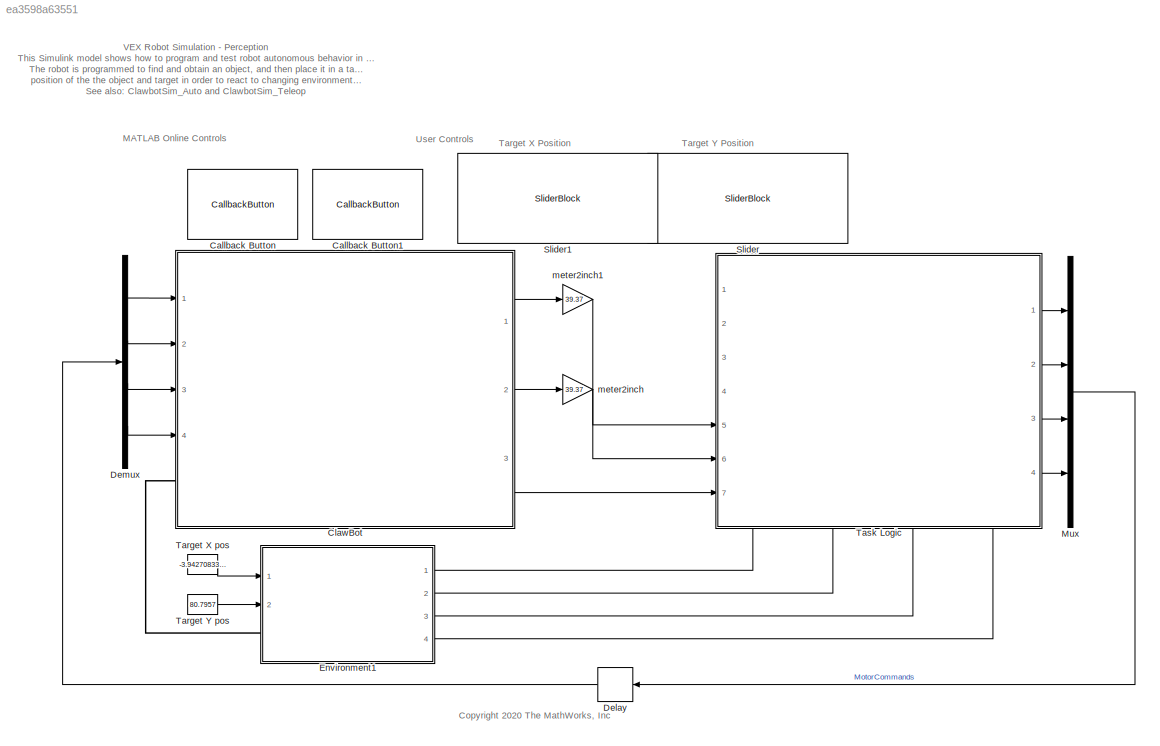
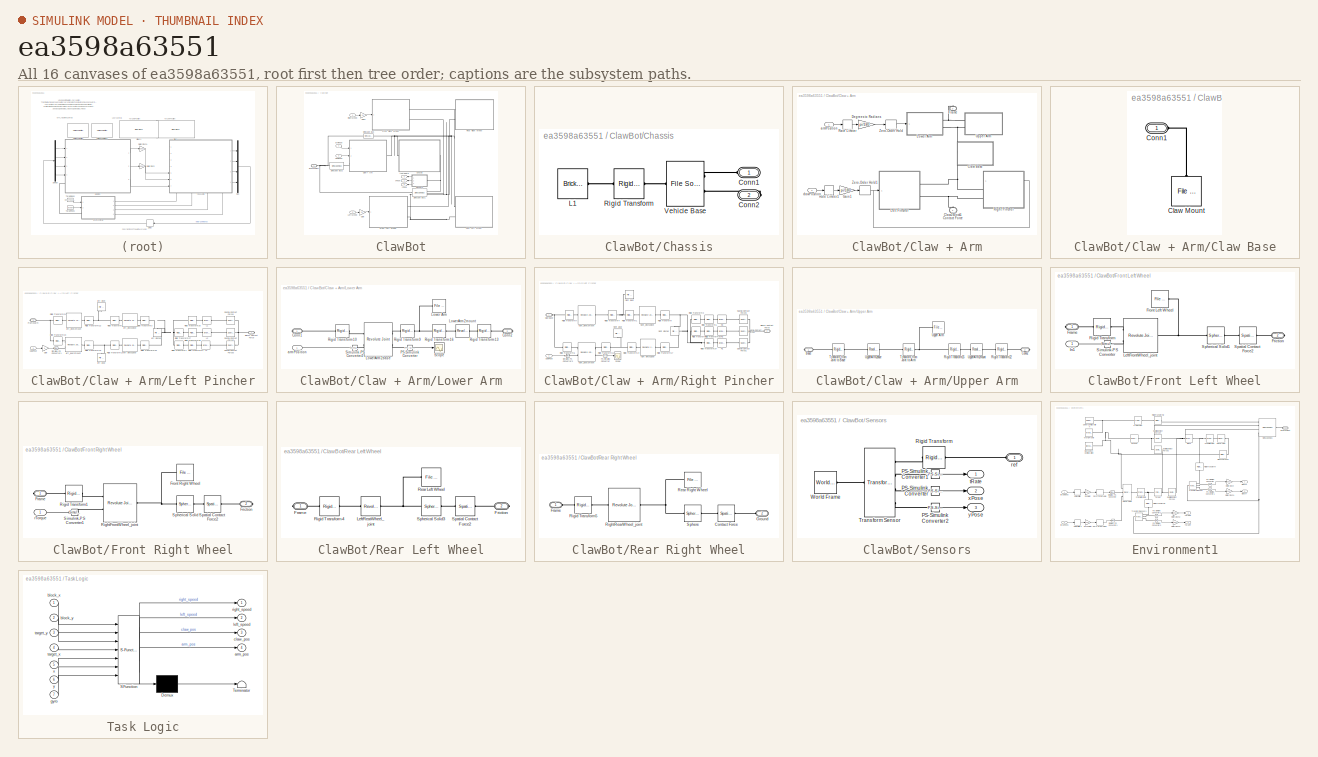
[diagram: thumbnail index - all 16 canvases of the model, root first then tree order]
MODEL slx_ea3598a63551
KIND model
CONFIG AbsTol = auto
CONFIG EnableMultiTasking = off
CONFIG FixedStep = auto
CONFIG MaxStep = auto
CONFIG MinStep = auto
CONFIG RelTol = 1e-3
CONFIG SampleTimeConstraint = Unconstrained
CONFIG Solver = VariableStepAuto
CONFIG SolverName = VariableStepAuto
CONFIG StartTime = 0.0
CONFIG StopTime = 10.0
BLOCK [CallbackButton] Callback Button
  ButtonText = Create Simulation Video
  ClickFcn = %% Simulate Model and Create Video\nmodel=gcs;\ndisp(['Simulating Model: ' model '...'])\nw=waitbar(0,['Simulating Model: ' model '...']);\nset_param(model, 'EnablePacing', 'off');\nsim(model);\nset_param(model, 'EnablePacing', 'on');\ndisp('Creating Simulation Video...')\nwaitbar(0.5,w,'Creating Simulation Video...')\nsmwritevideo(model,model,'FrameRate',16,'FrameSize',[1280 720],'Tile',1)\ndisp('Animation...<+111ch>
BLOCK [CallbackButton] Callback Button1
  ButtonText = Re-play Simulation Video
  ClickFcn = %% Playback Simulation Video\ndisp('Replaying Simulation Video...')\nvideoReader = VideoReader([gcs '.avi']);\nvideoPlayer = vision.VideoPlayer('Position',[100 100 1280 720]);\n\n% Play video. Every call to the step method reads another frame.\n\nwhile hasFrame(videoReader)\n   frame = readFrame(videoReader);\n   step(videoPlayer,frame);\n   pause(1/16);\nend\ndisp('Done replaying simulation video')
BLOCK [SubSystem] ClawBot
  Ports = [4, 3, 0, 0, 0, 1]
  RequestExecContextInheritance = off
BLOCK [SubSystem] ClawBot/Chassis
  NameLocation = top
  Ports = [0, 0, 0, 0, 0, 1, 1]
  RequestExecContextInheritance = off
BLOCK [PMIOPort] ClawBot/Chassis/Conn1
  Side = Left
BLOCK [PMIOPort] ClawBot/Chassis/Conn2
  Port = 2
  Side = Right
BLOCK [Reference] ClawBot/Chassis/L1  REF=sm_lib/Body Elements/Brick Solid
  NameLocation = top
  Ports = [0, 0, 0, 0, 0, 1]
  SourceBlock = sm_lib/Body Elements/Brick Solid
  SourceProductBaseCode = MS
  SourceType = Brick Solid
BLOCK [Reference] ClawBot/Chassis/Rigid Transform  REF=sm_lib/Frames and
Transforms/Rigid
Transform
  NameLocation = top
  Ports = [0, 0, 0, 0, 0, 1, 1]
  SourceBlock = sm_lib/Frames and\nTransforms/Rigid\nTransform
  SourceProductBaseCode = MS
  SourceType = Rigid\nTransform
BLOCK [Reference] ClawBot/Chassis/Vehicle Base  REF=sm_lib/Body Elements/File Solid
  Ports = [0, 0, 0, 0, 0, 2, 1]
  SourceBlock = sm_lib/Body Elements/File Solid
  SourceProductBaseCode = MS
  SourceType = File Solid
BLOCK [SubSystem] ClawBot/Claw + Arm
  Ports = [2, 0, 0, 0, 0, 1, 1]
  RequestExecContextInheritance = off
BLOCK [SubSystem] ClawBot/Claw + Arm/Claw Base
  NameLocation = top
  Ports = [0, 0, 0, 0, 0, 1]
  RequestExecContextInheritance = off
BLOCK [Reference] ClawBot/Claw + Arm/Claw Base/Claw Mount  REF=sm_lib/Body Elements/File Solid
  NameLocation = right
  Ports = [0, 0, 0, 0, 0, 1]
  SourceBlock = sm_lib/Body Elements/File Solid
  SourceProductBaseCode = MS
  SourceType = File Solid
BLOCK [PMIOPort] ClawBot/Claw + Arm/Claw Base/Conn1
  Side = Left
BLOCK [PMIOPort] ClawBot/Claw + Arm/Claw2Block1 Contact Force
  Side = Left
BLOCK [Gain] ClawBot/Claw + Arm/Degrees to Radians
  Gain = pi/180
BLOCK [PMIOPort] ClawBot/Claw + Arm/Frame
  NameLocation = top
  Port = 2
  Side = Right
BLOCK [Gain] ClawBot/Claw + Arm/Gain1
  Gain = pi/180
  NameLocation = top
BLOCK [SubSystem] ClawBot/Claw + Arm/Left Pincher
  NameLocation = top
  Ports = [1, 0, 0, 0, 0, 0, 2]
  RequestExecContextInheritance = off
BLOCK [PMIOPort] ClawBot/Claw + Arm/Left Pincher/Block1 Contact Force
  Port = 2
  Side = Right
BLOCK [PMIOPort] ClawBot/Claw + Arm/Left Pincher/Frame2arm
  NameLocation = top
  Side = Right
BLOCK [Gain] ClawBot/Claw + Arm/Left Pincher/Gain
  Gain = -1
BLOCK [Reference] ClawBot/Claw + Arm/Left Pincher/L1  REF=sm_lib/Body Elements/Brick Solid
  Ports = [0, 0, 0, 0, 0, 1, 1]
  SourceBlock = sm_lib/Body Elements/Brick Solid
  SourceProductBaseCode = MS
  SourceType = Brick Solid
BLOCK [Reference] ClawBot/Claw + Arm/Left Pincher/L2  REF=sm_lib/Body Elements/Brick Solid
  Ports = [0, 0, 0, 0, 0, 1, 1]
  SourceBlock = sm_lib/Body Elements/Brick Solid
  SourceProductBaseCode = MS
  SourceType = Brick Solid
BLOCK [Reference] ClawBot/Claw + Arm/Left Pincher/L3  REF=sm_lib/Body Elements/Brick Solid
  Ports = [0, 0, 0, 0, 0, 1, 1]
  SourceBlock = sm_lib/Body Elements/Brick Solid
  SourceProductBaseCode = MS
  SourceType = Brick Solid
BLOCK [Reference] ClawBot/Claw + Arm/Left Pincher/Rigid Transform1  REF=sm_lib/Frames and
Transforms/Rigid
Transform
  Ports = [0, 0, 0, 0, 0, 1, 1]
  SourceBlock = sm_lib/Frames and\nTransforms/Rigid\nTransform
  SourceProductBaseCode = MS
  SourceType = Rigid\nTransform
BLOCK [Reference] ClawBot/Claw + Arm/Left Pincher/Rigid Transform18  REF=sm_lib/Frames and
Transforms/Rigid
Transform
  Ports = [0, 0, 0, 0, 0, 1, 1]
  SourceBlock = sm_lib/Frames and\nTransforms/Rigid\nTransform
  SourceProductBaseCode = MS
  SourceType = Rigid\nTransform
BLOCK [Reference] ClawBot/Claw + Arm/Left Pincher/Rigid Transform19  REF=sm_lib/Frames and
Transforms/Rigid
Transform
  NameLocation = top
  Ports = [0, 0, 0, 0, 0, 1, 1]
  SourceBlock = sm_lib/Frames and\nTransforms/Rigid\nTransform
  SourceProductBaseCode = MS
  SourceType = Rigid\nTransform
BLOCK [Reference] ClawBot/Claw + Arm/Left Pincher/Rigid Transform2  REF=sm_lib/Frames and
Transforms/Rigid
Transform
  Ports = [0, 0, 0, 0, 0, 1, 1]
  SourceBlock = sm_lib/Frames and\nTransforms/Rigid\nTransform
  SourceProductBaseCode = MS
  SourceType = Rigid\nTransform
BLOCK [Reference] ClawBot/Claw + Arm/Left Pincher/Rigid Transform20  REF=sm_lib/Frames and
Transforms/Rigid
Transform
  NameLocation = top
  Ports = [0, 0, 0, 0, 0, 1, 1]
  SourceBlock = sm_lib/Frames and\nTransforms/Rigid\nTransform
  SourceProductBaseCode = MS
  SourceType = Rigid\nTransform
BLOCK [Reference] ClawBot/Claw + Arm/Left Pincher/Rigid Transform21  REF=sm_lib/Frames and
Transforms/Rigid
Transform
  NameLocation = top
  Ports = [0, 0, 0, 0, 0, 1, 1]
  SourceBlock = sm_lib/Frames and\nTransforms/Rigid\nTransform
  SourceProductBaseCode = MS
  SourceType = Rigid\nTransform
BLOCK [Reference] ClawBot/Claw + Arm/Left Pincher/Rigid Transform22  REF=sm_lib/Frames and
Transforms/Rigid
Transform
  NameLocation = top
  Ports = [0, 0, 0, 0, 0, 1, 1]
  SourceBlock = sm_lib/Frames and\nTransforms/Rigid\nTransform
  SourceProductBaseCode = MS
  SourceType = Rigid\nTransform
BLOCK [Reference] ClawBot/Claw + Arm/Left Pincher/Rigid Transform23  REF=sm_lib/Frames and
Transforms/Rigid
Transform
  NameLocation = top
  Ports = [0, 0, 0, 0, 0, 1, 1]
  SourceBlock = sm_lib/Frames and\nTransforms/Rigid\nTransform
  SourceProductBaseCode = MS
  SourceType = Rigid\nTransform
BLOCK [Reference] ClawBot/Claw + Arm/Left Pincher/Rigid Transform25  REF=sm_lib/Frames and
Transforms/Rigid
Transform
  Ports = [0, 0, 0, 0, 0, 1, 1]
  SourceBlock = sm_lib/Frames and\nTransforms/Rigid\nTransform
  SourceProductBaseCode = MS
  SourceType = Rigid\nTransform
BLOCK [Reference] ClawBot/Claw + Arm/Left Pincher/Rigid Transform27  REF=sm_lib/Frames and
Transforms/Rigid
Transform
  Ports = [0, 0, 0, 0, 0, 1, 1]
  SourceBlock = sm_lib/Frames and\nTransforms/Rigid\nTransform
  SourceProductBaseCode = MS
  SourceType = Rigid\nTransform
BLOCK [Reference] ClawBot/Claw + Arm/Left Pincher/Rigid Transform28  REF=sm_lib/Frames and
Transforms/Rigid
Transform
  Ports = [0, 0, 0, 0, 0, 1, 1]
  SourceBlock = sm_lib/Frames and\nTransforms/Rigid\nTransform
  SourceProductBaseCode = MS
  SourceType = Rigid\nTransform
BLOCK [Reference] ClawBot/Claw + Arm/Left Pincher/Rigid Transform3  REF=sm_lib/Frames and
Transforms/Rigid
Transform
  NameLocation = top
  Ports = [0, 0, 0, 0, 0, 1, 1]
  SourceBlock = sm_lib/Frames and\nTransforms/Rigid\nTransform
  SourceProductBaseCode = MS
  SourceType = Rigid\nTransform
BLOCK [Reference] ClawBot/Claw + Arm/Left Pincher/Rigid Transform5  REF=sm_lib/Frames and
Transforms/Rigid
Transform
  Ports = [0, 0, 0, 0, 0, 1, 1]
  SourceBlock = sm_lib/Frames and\nTransforms/Rigid\nTransform
  SourceProductBaseCode = MS
  SourceType = Rigid\nTransform
BLOCK [Reference] ClawBot/Claw + Arm/Left Pincher/Simulink-PS Converter1  REF=nesl_utility/Simulink-PS
Converter
  Ports = [1, 0, 0, 0, 0, 0, 1]
  SourceBlock = nesl_utility/Simulink-PS\nConverter
  SourceProductBaseCode = SS
  SourceType = Simulink-PS\nConverter
BLOCK [Reference] ClawBot/Claw + Arm/Left Pincher/Spatial Contact Force1  REF=sm_lib/Forces and
Torques/Spatial
Contact Force
  Ports = [0, 0, 0, 0, 0, 1, 1]
  SourceBlock = sm_lib/Forces and\nTorques/Spatial\nContact Force
  SourceProductBaseCode = MS
  SourceType = Spatial\nContact Force
BLOCK [Reference] ClawBot/Claw + Arm/Left Pincher/Spatial Contact Force2  REF=sm_lib/Forces and
Torques/Spatial
Contact Force
  Ports = [0, 0, 0, 0, 0, 1, 1]
  SourceBlock = sm_lib/Forces and\nTorques/Spatial\nContact Force
  SourceProductBaseCode = MS
  SourceType = Spatial\nContact Force
BLOCK [Reference] ClawBot/Claw + Arm/Left Pincher/Spatial Contact Force3  REF=sm_lib/Forces and
Torques/Spatial
Contact Force
  Ports = [0, 0, 0, 0, 0, 1, 1]
  SourceBlock = sm_lib/Forces and\nTorques/Spatial\nContact Force
  SourceProductBaseCode = MS
  SourceType = Spatial\nContact Force
BLOCK [Inport] ClawBot/Claw + Arm/Left Pincher/clawPose
BLOCK [Reference] ClawBot/Claw + Arm/Left Pincher/left gear  REF=sm_lib/Body Elements/File Solid
  NameLocation = left
  Ports = [0, 0, 0, 0, 0, 1]
  SourceBlock = sm_lib/Body Elements/File Solid
  SourceProductBaseCode = MS
  SourceType = File Solid
BLOCK [Reference] ClawBot/Claw + Arm/Left Pincher/left pinch2gear  REF=sm_lib/Joints/Revolute Joint
  NameLocation = top
  Ports = [0, 0, 0, 0, 0, 1, 1]
  SourceBlock = sm_lib/Joints/Revolute Joint
  SourceProductBaseCode = MS
  SourceType = Revolute Joint
BLOCK [Reference] ClawBot/Claw + Arm/Left Pincher/left pincher  REF=sm_lib/Body Elements/File Solid
  NameLocation = left
  Ports = [0, 0, 0, 0, 0, 1]
  SourceBlock = sm_lib/Body Elements/File Solid
  SourceProductBaseCode = MS
  SourceType = File Solid
BLOCK [Reference] ClawBot/Claw + Arm/Left Pincher/left pivot  REF=sm_lib/Body Elements/File Solid
  NameLocation = left
  Ports = [0, 0, 0, 0, 0, 1]
  SourceBlock = sm_lib/Body Elements/File Solid
  SourceProductBaseCode = MS
  SourceType = File Solid
BLOCK [Reference] ClawBot/Claw + Arm/Left Pincher/left_gear2mount  REF=sm_lib/Joints/Revolute Joint
  Ports = [0, 0, 0, 0, 0, 2, 1]
  SourceBlock = sm_lib/Joints/Revolute Joint
  SourceProductBaseCode = MS
  SourceType = Revolute Joint
BLOCK [Reference] ClawBot/Claw + Arm/Left Pincher/left_pinch2pivot  REF=sm_lib/Joints/Revolute Joint
  NameLocation = top
  Ports = [0, 0, 0, 0, 0, 1, 1]
  SourceBlock = sm_lib/Joints/Revolute Joint
  SourceProductBaseCode = MS
  SourceType = Revolute Joint
BLOCK [Reference] ClawBot/Claw + Arm/Left Pincher/left_pivot2mount  REF=sm_lib/Joints/Revolute Joint
  NameLocation = top
  Ports = [0, 0, 0, 0, 0, 1, 1]
  SourceBlock = sm_lib/Joints/Revolute Joint
  SourceProductBaseCode = MS
  SourceType = Revolute Joint
BLOCK [SubSystem] ClawBot/Claw + Arm/Lower Arm
  NameLocation = top
  Ports = [1, 0, 0, 0, 0, 0, 2]
  RequestExecContextInheritance = off
BLOCK [PMIOPort] ClawBot/Claw + Arm/Lower Arm/Conn1
  Side = Right
BLOCK [PMIOPort] ClawBot/Claw + Arm/Lower Arm/Conn2
  Port = 2
  Side = Right
BLOCK [Reference] ClawBot/Claw + Arm/Lower Arm/Lower Arm  REF=sm_lib/Body Elements/File Solid
  Ports = [0, 0, 0, 0, 0, 1]
  SourceBlock = sm_lib/Body Elements/File Solid
  SourceProductBaseCode = MS
  SourceType = File Solid
BLOCK [Reference] ClawBot/Claw + Arm/Lower Arm/LowerArm2base  REF=sm_lib/Joints/Revolute Joint
  Ports = [0, 0, 0, 0, 0, 2, 2]
  SourceBlock = sm_lib/Joints/Revolute Joint
  SourceProductBaseCode = MS
  SourceType = Revolute Joint
BLOCK [Reference] ClawBot/Claw + Arm/Lower Arm/LowerArm2mount  REF=sm_lib/Joints/Revolute Joint
  Ports = [0, 0, 0, 0, 0, 1, 1]
  SourceBlock = sm_lib/Joints/Revolute Joint
  SourceProductBaseCode = MS
  SourceType = Revolute Joint
BLOCK [Reference] ClawBot/Claw + Arm/Lower Arm/PS-Simulink Converter  REF=nesl_utility/PS-Simulink
Converter
  Ports = [0, 1, 0, 0, 0, 1]
  SourceBlock = nesl_utility/PS-Simulink\nConverter
  SourceProductBaseCode = SS
  SourceType = PS-Simulink\nConverter
BLOCK [Reference] ClawBot/Claw + Arm/Lower Arm/Rigid Transform10  REF=sm_lib/Frames and
Transforms/Rigid
Transform
  Ports = [0, 0, 0, 0, 0, 1, 1]
  SourceBlock = sm_lib/Frames and\nTransforms/Rigid\nTransform
  SourceProductBaseCode = MS
  SourceType = Rigid\nTransform
BLOCK [Reference] ClawBot/Claw + Arm/Lower Arm/Rigid Transform13  REF=sm_lib/Frames and
Transforms/Rigid
Transform
  Ports = [0, 0, 0, 0, 0, 1, 1]
  SourceBlock = sm_lib/Frames and\nTransforms/Rigid\nTransform
  SourceProductBaseCode = MS
  SourceType = Rigid\nTransform
BLOCK [Reference] ClawBot/Claw + Arm/Lower Arm/Rigid Transform16  REF=sm_lib/Frames and
Transforms/Rigid
Transform
  Ports = [0, 0, 0, 0, 0, 1, 1]
  SourceBlock = sm_lib/Frames and\nTransforms/Rigid\nTransform
  SourceProductBaseCode = MS
  SourceType = Rigid\nTransform
BLOCK [Reference] ClawBot/Claw + Arm/Lower Arm/Rigid Transform9  REF=sm_lib/Frames and
Transforms/Rigid
Transform
  Ports = [0, 0, 0, 0, 0, 1, 1]
  SourceBlock = sm_lib/Frames and\nTransforms/Rigid\nTransform
  SourceProductBaseCode = MS
  SourceType = Rigid\nTransform
BLOCK [Scope] ClawBot/Claw + Arm/Lower Arm/Scope
  Floating = off
  NumInputPorts = 1
  Ports = [1]
  ScopeSpecificationString = Simulink.scopes.TimeScopeBlockCfg('CurrentConfiguration', extmgr.ConfigurationSet(extmgr.Configuration('Core','General UI',true),extmgr.Configuration('Core','Source UI',true),extmgr.Configuration('Sources','WiredSimulink',true),extmgr.Configuration('Visuals','Time Domain',true,'SerializedDisplays',{struct('MinYLimReal','-101.85053','MaxYLimReal','95.32252','YLabelReal','','MinYLimMag',' 0.00000','...<+1380ch>
BLOCK [Reference] ClawBot/Claw + Arm/Lower Arm/Simulink-PS Converter2  REF=nesl_utility/Simulink-PS
Converter
  Ports = [1, 0, 0, 0, 0, 0, 1]
  SourceBlock = nesl_utility/Simulink-PS\nConverter
  SourceProductBaseCode = SS
  SourceType = Simulink-PS\nConverter
BLOCK [Inport] ClawBot/Claw + Arm/Lower Arm/armPosition
BLOCK [RateLimiter] ClawBot/Claw + Arm/Rate Limiter
  FallingSlewLimit = -25
  RisingSlewLimit = 25
  SampleTimeMode = inherited
BLOCK [RateLimiter] ClawBot/Claw + Arm/Rate Limiter1
  FallingSlewLimit = -1000
  NameLocation = top
  RisingSlewLimit = 1000
  SampleTimeMode = inherited
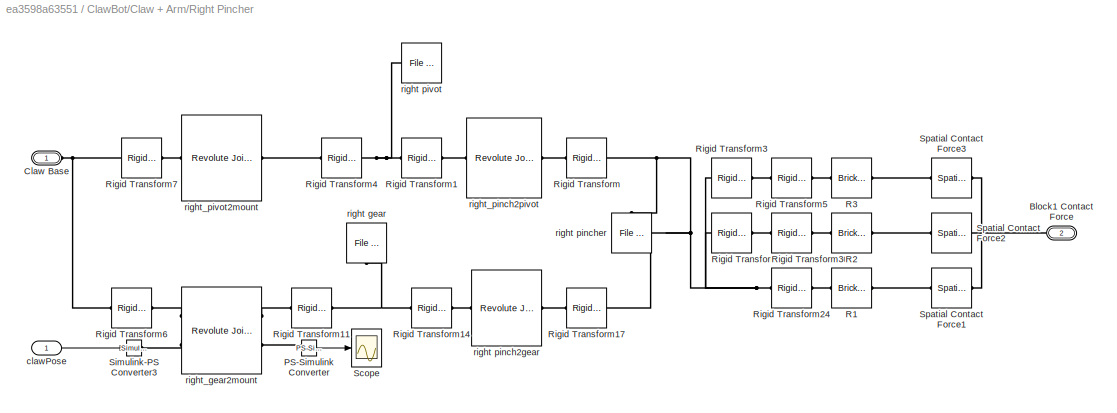
BLOCK [SubSystem] ClawBot/Claw + Arm/Right Pincher
  PortSchema = {"entries":[{"content":{"sides":[{"content":{"connectorIds":["LConn1","LConn2"]},"type":"ConnectorPlacement.EquallySpacedRectSide","uuid":"c31b3bd7-e4f0-40c1-8d05-2dd0f52601d0"},{"content":{"connectorIds":["In1"],"side":"RIGHT"},"type":"ConnectorPlacement.EquallySpacedRectSide","uuid":"b782f98b-67c6-482a-abad-dffd6dc88c6a"},{"content":{"connectorIds":[],"side":"TOP"},"type":"ConnectorPlacement.Equ...<+253ch>
  Ports = [1, 0, 0, 0, 0, 2]
  RequestExecContextInheritance = off
BLOCK [PMIOPort] ClawBot/Claw + Arm/Right Pincher/Block1 Contact Force
  NameLocation = top
  Port = 2
  Side = Left
BLOCK [PMIOPort] ClawBot/Claw + Arm/Right Pincher/Claw Base
  Side = Left
BLOCK [Reference] ClawBot/Claw + Arm/Right Pincher/PS-Simulink Converter  REF=nesl_utility/PS-Simulink
Converter
  Ports = [0, 1, 0, 0, 0, 1]
  SourceBlock = nesl_utility/PS-Simulink\nConverter
  SourceProductBaseCode = SS
  SourceType = PS-Simulink\nConverter
BLOCK [Reference] ClawBot/Claw + Arm/Right Pincher/R1  REF=sm_lib/Body Elements/Brick Solid
  NameLocation = top
  Ports = [0, 0, 0, 0, 0, 1, 1]
  SourceBlock = sm_lib/Body Elements/Brick Solid
  SourceProductBaseCode = MS
  SourceType = Brick Solid
BLOCK [Reference] ClawBot/Claw + Arm/Right Pincher/R2  REF=sm_lib/Body Elements/Brick Solid
  NameLocation = top
  Ports = [0, 0, 0, 0, 0, 1, 1]
  SourceBlock = sm_lib/Body Elements/Brick Solid
  SourceProductBaseCode = MS
  SourceType = Brick Solid
BLOCK [Reference] ClawBot/Claw + Arm/Right Pincher/R3  REF=sm_lib/Body Elements/Brick Solid
  NameLocation = top
  Ports = [0, 0, 0, 0, 0, 1, 1]
  SourceBlock = sm_lib/Body Elements/Brick Solid
  SourceProductBaseCode = MS
  SourceType = Brick Solid
BLOCK [Reference] ClawBot/Claw + Arm/Right Pincher/Rigid Transform  REF=sm_lib/Frames and
Transforms/Rigid
Transform
  Ports = [0, 0, 0, 0, 0, 1, 1]
  SourceBlock = sm_lib/Frames and\nTransforms/Rigid\nTransform
  SourceProductBaseCode = MS
  SourceType = Rigid\nTransform
BLOCK [Reference] ClawBot/Claw + Arm/Right Pincher/Rigid Transform1  REF=sm_lib/Frames and
Transforms/Rigid
Transform
  NameLocation = top
  Ports = [0, 0, 0, 0, 0, 1, 1]
  SourceBlock = sm_lib/Frames and\nTransforms/Rigid\nTransform
  SourceProductBaseCode = MS
  SourceType = Rigid\nTransform
BLOCK [Reference] ClawBot/Claw + Arm/Right Pincher/Rigid Transform11  REF=sm_lib/Frames and
Transforms/Rigid
Transform
  NameLocation = top
  Ports = [0, 0, 0, 0, 0, 1, 1]
  SourceBlock = sm_lib/Frames and\nTransforms/Rigid\nTransform
  SourceProductBaseCode = MS
  SourceType = Rigid\nTransform
BLOCK [Reference] ClawBot/Claw + Arm/Right Pincher/Rigid Transform14  REF=sm_lib/Frames and
Transforms/Rigid
Transform
  Ports = [0, 0, 0, 0, 0, 1, 1]
  SourceBlock = sm_lib/Frames and\nTransforms/Rigid\nTransform
  SourceProductBaseCode = MS
  SourceType = Rigid\nTransform
BLOCK [Reference] ClawBot/Claw + Arm/Right Pincher/Rigid Transform17  REF=sm_lib/Frames and
Transforms/Rigid
Transform
  Ports = [0, 0, 0, 0, 0, 1, 1]
  SourceBlock = sm_lib/Frames and\nTransforms/Rigid\nTransform
  SourceProductBaseCode = MS
  SourceType = Rigid\nTransform
BLOCK [Reference] ClawBot/Claw + Arm/Right Pincher/Rigid Transform24  REF=sm_lib/Frames and
Transforms/Rigid
Transform
  NameLocation = top
  Ports = [0, 0, 0, 0, 0, 1, 1]
  SourceBlock = sm_lib/Frames and\nTransforms/Rigid\nTransform
  SourceProductBaseCode = MS
  SourceType = Rigid\nTransform
BLOCK [Reference] ClawBot/Claw + Arm/Right Pincher/Rigid Transform29  REF=sm_lib/Frames and
Transforms/Rigid
Transform
  NameLocation = top
  Ports = [0, 0, 0, 0, 0, 1, 1]
  SourceBlock = sm_lib/Frames and\nTransforms/Rigid\nTransform
  SourceProductBaseCode = MS
  SourceType = Rigid\nTransform
BLOCK [Reference] ClawBot/Claw + Arm/Right Pincher/Rigid Transform3  REF=sm_lib/Frames and
Transforms/Rigid
Transform
  NameLocation = top
  Ports = [0, 0, 0, 0, 0, 1, 1]
  SourceBlock = sm_lib/Frames and\nTransforms/Rigid\nTransform
  SourceProductBaseCode = MS
  SourceType = Rigid\nTransform
BLOCK [Reference] ClawBot/Claw + Arm/Right Pincher/Rigid Transform30  REF=sm_lib/Frames and
Transforms/Rigid
Transform
  NameLocation = top
  Ports = [0, 0, 0, 0, 0, 1, 1]
  SourceBlock = sm_lib/Frames and\nTransforms/Rigid\nTransform
  SourceProductBaseCode = MS
  SourceType = Rigid\nTransform
BLOCK [Reference] ClawBot/Claw + Arm/Right Pincher/Rigid Transform4  REF=sm_lib/Frames and
Transforms/Rigid
Transform
  Ports = [0, 0, 0, 0, 0, 1, 1]
  SourceBlock = sm_lib/Frames and\nTransforms/Rigid\nTransform
  SourceProductBaseCode = MS
  SourceType = Rigid\nTransform
BLOCK [Reference] ClawBot/Claw + Arm/Right Pincher/Rigid Transform5  REF=sm_lib/Frames and
Transforms/Rigid
Transform
  NameLocation = top
  Ports = [0, 0, 0, 0, 0, 1, 1]
  SourceBlock = sm_lib/Frames and\nTransforms/Rigid\nTransform
  SourceProductBaseCode = MS
  SourceType = Rigid\nTransform
BLOCK [Reference] ClawBot/Claw + Arm/Right Pincher/Rigid Transform6  REF=sm_lib/Frames and
Transforms/Rigid
Transform
  Ports = [0, 0, 0, 0, 0, 1, 1]
  SourceBlock = sm_lib/Frames and\nTransforms/Rigid\nTransform
  SourceProductBaseCode = MS
  SourceType = Rigid\nTransform
BLOCK [Reference] ClawBot/Claw + Arm/Right Pincher/Rigid Transform7  REF=sm_lib/Frames and
Transforms/Rigid
Transform
  Ports = [0, 0, 0, 0, 0, 1, 1]
  SourceBlock = sm_lib/Frames and\nTransforms/Rigid\nTransform
  SourceProductBaseCode = MS
  SourceType = Rigid\nTransform
BLOCK [Scope] ClawBot/Claw + Arm/Right Pincher/Scope
  Floating = off
  NumInputPorts = 1
  Ports = [1]
  ScopeSpecificationString = Simulink.scopes.TimeScopeBlockCfg('CurrentConfiguration', extmgr.ConfigurationSet(extmgr.Configuration('Core','General UI',true),extmgr.Configuration('Core','Source UI',true),extmgr.Configuration('Sources','WiredSimulink',true,'DataLoggingVariableName','ScopeData4'),extmgr.Configuration('Visuals','Time Domain',true,'SerializedDisplays',{struct('MinYLimReal','-826.00645','MaxYLimReal','891.95562','...<+1422ch>
BLOCK [Reference] ClawBot/Claw + Arm/Right Pincher/Simulink-PS Converter3  REF=nesl_utility/Simulink-PS
Converter
  NameLocation = top
  Ports = [1, 0, 0, 0, 0, 0, 1]
  SourceBlock = nesl_utility/Simulink-PS\nConverter
  SourceProductBaseCode = SS
  SourceType = Simulink-PS\nConverter
BLOCK [Reference] ClawBot/Claw + Arm/Right Pincher/Spatial Contact Force1  REF=sm_lib/Forces and
Torques/Spatial
Contact Force
  NameLocation = top
  Ports = [0, 0, 0, 0, 0, 1, 1]
  SourceBlock = sm_lib/Forces and\nTorques/Spatial\nContact Force
  SourceProductBaseCode = MS
  SourceType = Spatial\nContact Force
BLOCK [Reference] ClawBot/Claw + Arm/Right Pincher/Spatial Contact Force2  REF=sm_lib/Forces and
Torques/Spatial
Contact Force
  NameLocation = top
  Ports = [0, 0, 0, 0, 0, 1, 1]
  SourceBlock = sm_lib/Forces and\nTorques/Spatial\nContact Force
  SourceProductBaseCode = MS
  SourceType = Spatial\nContact Force
BLOCK [Reference] ClawBot/Claw + Arm/Right Pincher/Spatial Contact Force3  REF=sm_lib/Forces and
Torques/Spatial
Contact Force
  NameLocation = top
  Ports = [0, 0, 0, 0, 0, 1, 1]
  SourceBlock = sm_lib/Forces and\nTorques/Spatial\nContact Force
  SourceProductBaseCode = MS
  SourceType = Spatial\nContact Force
BLOCK [Inport] ClawBot/Claw + Arm/Right Pincher/clawPose
BLOCK [Reference] ClawBot/Claw + Arm/Right Pincher/right gear  REF=sm_lib/Body Elements/File Solid
  NameLocation = left
  Ports = [0, 0, 0, 0, 0, 1]
  SourceBlock = sm_lib/Body Elements/File Solid
  SourceProductBaseCode = MS
  SourceType = File Solid
BLOCK [Reference] ClawBot/Claw + Arm/Right Pincher/right pinch2gear  REF=sm_lib/Joints/Revolute Joint
  Ports = [0, 0, 0, 0, 0, 1, 1]
  SourceBlock = sm_lib/Joints/Revolute Joint
  SourceProductBaseCode = MS
  SourceType = Revolute Joint
BLOCK [Reference] ClawBot/Claw + Arm/Right Pincher/right pincher  REF=sm_lib/Body Elements/File Solid
  NameLocation = left
  Ports = [0, 0, 0, 0, 0, 1]
  SourceBlock = sm_lib/Body Elements/File Solid
  SourceProductBaseCode = MS
  SourceType = File Solid
BLOCK [Reference] ClawBot/Claw + Arm/Right Pincher/right pivot  REF=sm_lib/Body Elements/File Solid
  Ports = [0, 0, 0, 0, 0, 1]
  SourceBlock = sm_lib/Body Elements/File Solid
  SourceProductBaseCode = MS
  SourceType = File Solid
BLOCK [Reference] ClawBot/Claw + Arm/Right Pincher/right_gear2mount  REF=sm_lib/Joints/Revolute Joint
  NameLocation = top
  Ports = [0, 0, 0, 0, 0, 2, 2]
  SourceBlock = sm_lib/Joints/Revolute Joint
  SourceProductBaseCode = MS
  SourceType = Revolute Joint
BLOCK [Reference] ClawBot/Claw + Arm/Right Pincher/right_pinch2pivot  REF=sm_lib/Joints/Revolute Joint
  Ports = [0, 0, 0, 0, 0, 1, 1]
  SourceBlock = sm_lib/Joints/Revolute Joint
  SourceProductBaseCode = MS
  SourceType = Revolute Joint
BLOCK [Reference] ClawBot/Claw + Arm/Right Pincher/right_pivot2mount  REF=sm_lib/Joints/Revolute Joint
  Ports = [0, 0, 0, 0, 0, 1, 1]
  SourceBlock = sm_lib/Joints/Revolute Joint
  SourceProductBaseCode = MS
  SourceType = Revolute Joint
BLOCK [SubSystem] ClawBot/Claw + Arm/Upper Arm
  NameLocation = top
  Ports = [0, 0, 0, 0, 0, 0, 2]
  RequestExecContextInheritance = off
BLOCK [PMIOPort] ClawBot/Claw + Arm/Upper Arm/Base
  Side = Right
BLOCK [PMIOPort] ClawBot/Claw + Arm/Upper Arm/Conn2
  Port = 2
  Side = Right
BLOCK [Reference] ClawBot/Claw + Arm/Upper Arm/Rigid Transform12  REF=sm_lib/Frames and
Transforms/Rigid
Transform
  NameLocation = top
  Ports = [0, 0, 0, 0, 0, 1, 1]
  SourceBlock = sm_lib/Frames and\nTransforms/Rigid\nTransform
  SourceProductBaseCode = MS
  SourceType = Rigid\nTransform
BLOCK [Reference] ClawBot/Claw + Arm/Upper Arm/Rigid Transform15  REF=sm_lib/Frames and
Transforms/Rigid
Transform
  NameLocation = top
  Ports = [0, 0, 0, 0, 0, 1, 1]
  SourceBlock = sm_lib/Frames and\nTransforms/Rigid\nTransform
  SourceProductBaseCode = MS
  SourceType = Rigid\nTransform
BLOCK [Reference] ClawBot/Claw + Arm/Upper Arm/Transform from Joint to Arm  REF=sm_lib/Frames and
Transforms/Rigid
Transform
  Ports = [0, 0, 0, 0, 0, 1, 1]
  SourceBlock = sm_lib/Frames and\nTransforms/Rigid\nTransform
  SourceProductBaseCode = MS
  SourceType = Rigid\nTransform
BLOCK [Reference] ClawBot/Claw + Arm/Upper Arm/Transform from Joint to Base  REF=sm_lib/Frames and
Transforms/Rigid
Transform
  Ports = [0, 0, 0, 0, 0, 1, 1]
  SourceBlock = sm_lib/Frames and\nTransforms/Rigid\nTransform
  SourceProductBaseCode = MS
  SourceType = Rigid\nTransform
BLOCK [Reference] ClawBot/Claw + Arm/Upper Arm/Upper Arm  REF=sm_lib/Body Elements/File Solid
  Ports = [0, 0, 0, 0, 0, 1]
  SourceBlock = sm_lib/Body Elements/File Solid
  SourceProductBaseCode = MS
  SourceType = File Solid
BLOCK [Reference] ClawBot/Claw + Arm/Upper Arm/UpperArm2base  REF=sm_lib/Joints/Revolute Joint
  Ports = [0, 0, 0, 0, 0, 1, 1]
  SourceBlock = sm_lib/Joints/Revolute Joint
  SourceProductBaseCode = MS
  SourceType = Revolute Joint
BLOCK [Reference] ClawBot/Claw + Arm/Upper Arm/UpperArm2mount  REF=sm_lib/Joints/Revolute Joint
  Ports = [0, 0, 0, 0, 0, 1, 1]
  SourceBlock = sm_lib/Joints/Revolute Joint
  SourceProductBaseCode = MS
  SourceType = Revolute Joint
BLOCK [ZeroOrderHold] ClawBot/Claw + Arm/Zero-Order Hold
  SampleTime = -1
BLOCK [ZeroOrderHold] ClawBot/Claw + Arm/Zero-Order Hold1
  NameLocation = top
  SampleTime = -1
BLOCK [Inport] ClawBot/Claw + Arm/armPosition
BLOCK [Inport] ClawBot/Claw + Arm/clawPosition
  Port = 2
BLOCK [PMIOPort] ClawBot/Environment
  Side = Left
BLOCK [SubSystem] ClawBot/Front Left Wheel
  Ports = [1, 0, 0, 0, 0, 0, 2]
  RequestExecContextInheritance = off
BLOCK [PMIOPort] ClawBot/Front Left Wheel/Frame
  Side = Right
BLOCK [PMIOPort] ClawBot/Front Left Wheel/Friction
  NameLocation = top
  Port = 2
  Side = Right
BLOCK [Reference] ClawBot/Front Left Wheel/Front Left Wheel  REF=sm_lib/Body Elements/File Solid
  Ports = [0, 0, 0, 0, 0, 1]
  SourceBlock = sm_lib/Body Elements/File Solid
  SourceProductBaseCode = MS
  SourceType = File Solid
BLOCK [Inport] ClawBot/Front Left Wheel/In1
BLOCK [Reference] ClawBot/Front Left Wheel/LeftFrontWheel_joint  REF=sm_lib/Joints/Revolute Joint
  Ports = [0, 0, 0, 0, 0, 2, 1]
  SourceBlock = sm_lib/Joints/Revolute Joint
  SourceProductBaseCode = MS
  SourceType = Revolute Joint
BLOCK [Reference] ClawBot/Front Left Wheel/Rigid Transform  REF=sm_lib/Frames and
Transforms/Rigid
Transform
  NameLocation = top
  Ports = [0, 0, 0, 0, 0, 1, 1]
  SourceBlock = sm_lib/Frames and\nTransforms/Rigid\nTransform
  SourceProductBaseCode = MS
  SourceType = Rigid\nTransform
BLOCK [Reference] ClawBot/Front Left Wheel/Simulink-PS Converter  REF=nesl_utility/Simulink-PS
Converter
  Ports = [1, 0, 0, 0, 0, 0, 1]
  SourceBlock = nesl_utility/Simulink-PS\nConverter
  SourceProductBaseCode = SS
  SourceType = Simulink-PS\nConverter
BLOCK [Reference] ClawBot/Front Left Wheel/Spatial Contact Force2  REF=sm_lib/Forces and
Torques/Spatial
Contact Force
  Ports = [0, 0, 0, 0, 0, 1, 1]
  SourceBlock = sm_lib/Forces and\nTorques/Spatial\nContact Force
  SourceProductBaseCode = MS
  SourceType = Spatial\nContact Force
BLOCK [Reference] ClawBot/Front Left Wheel/Spherical Solid1  REF=sm_lib/Body Elements/Spherical Solid
  Ports = [0, 0, 0, 0, 0, 1, 1]
  SourceBlock = sm_lib/Body Elements/Spherical Solid
  SourceProductBaseCode = MS
  SourceType = Spherical Solid
BLOCK [SubSystem] ClawBot/Front Right Wheel
  Ports = [1, 0, 0, 0, 0, 0, 2]
  RequestExecContextInheritance = off
BLOCK [PMIOPort] ClawBot/Front Right Wheel/Frame
  Side = Right
BLOCK [PMIOPort] ClawBot/Front Right Wheel/Friction
  NameLocation = top
  Port = 2
  Side = Right
BLOCK [Reference] ClawBot/Front Right Wheel/Front Right Wheel  REF=sm_lib/Body Elements/File Solid
  Ports = [0, 0, 0, 0, 0, 1]
  SourceBlock = sm_lib/Body Elements/File Solid
  SourceProductBaseCode = MS
  SourceType = File Solid
BLOCK [Reference] ClawBot/Front Right Wheel/RightFrontWheel_joint  REF=sm_lib/Joints/Revolute Joint
  Ports = [0, 0, 0, 0, 0, 2, 1]
  SourceBlock = sm_lib/Joints/Revolute Joint
  SourceProductBaseCode = MS
  SourceType = Revolute Joint
BLOCK [Reference] ClawBot/Front Right Wheel/Rigid Transform1  REF=sm_lib/Frames and
Transforms/Rigid
Transform
  Ports = [0, 0, 0, 0, 0, 1, 1]
  SourceBlock = sm_lib/Frames and\nTransforms/Rigid\nTransform
  SourceProductBaseCode = MS
  SourceType = Rigid\nTransform
BLOCK [Reference] ClawBot/Front Right Wheel/Simulink-PS Converter1  REF=nesl_utility/Simulink-PS
Converter
  Ports = [1, 0, 0, 0, 0, 0, 1]
  SourceBlock = nesl_utility/Simulink-PS\nConverter
  SourceProductBaseCode = SS
  SourceType = Simulink-PS\nConverter
BLOCK [Reference] ClawBot/Front Right Wheel/Spatial Contact Force2  REF=sm_lib/Forces and
Torques/Spatial
Contact Force
  Ports = [0, 0, 0, 0, 0, 1, 1]
  SourceBlock = sm_lib/Forces and\nTorques/Spatial\nContact Force
  SourceProductBaseCode = MS
  SourceType = Spatial\nContact Force
BLOCK [Reference] ClawBot/Front Right Wheel/Spherical Solid  REF=sm_lib/Body Elements/Spherical Solid
  NameLocation = top
  Ports = [0, 0, 0, 0, 0, 1, 1]
  SourceBlock = sm_lib/Body Elements/Spherical Solid
  SourceProductBaseCode = MS
  SourceType = Spherical Solid
BLOCK [Inport] ClawBot/Front Right Wheel/rTorque
BLOCK [Gain] ClawBot/Gain
  Gain = 10
BLOCK [Gain] ClawBot/Gain1
  Gain = 10
BLOCK [Inport] ClawBot/LeftWheel
  NameLocation = top
  Port = 2
BLOCK [SubSystem] ClawBot/Rear Left Wheel
  Ports = [0, 0, 0, 0, 0, 0, 2]
  RequestExecContextInheritance = off
BLOCK [PMIOPort] ClawBot/Rear Left Wheel/Frame
  Side = Right
BLOCK [PMIOPort] ClawBot/Rear Left Wheel/Friction
  Port = 2
  Side = Right
BLOCK [Reference] ClawBot/Rear Left Wheel/LeftRearWheel_joint  REF=sm_lib/Joints/Revolute Joint
  Ports = [0, 0, 0, 0, 0, 1, 1]
  SourceBlock = sm_lib/Joints/Revolute Joint
  SourceProductBaseCode = MS
  SourceType = Revolute Joint
BLOCK [Reference] ClawBot/Rear Left Wheel/Rear Left Wheel  REF=sm_lib/Body Elements/File Solid
  NameLocation = top
  Ports = [0, 0, 0, 0, 0, 1]
  SourceBlock = sm_lib/Body Elements/File Solid
  SourceProductBaseCode = MS
  SourceType = File Solid
BLOCK [Reference] ClawBot/Rear Left Wheel/Rigid Transform4  REF=sm_lib/Frames and
Transforms/Rigid
Transform
  Ports = [0, 0, 0, 0, 0, 1, 1]
  SourceBlock = sm_lib/Frames and\nTransforms/Rigid\nTransform
  SourceProductBaseCode = MS
  SourceType = Rigid\nTransform
BLOCK [Reference] ClawBot/Rear Left Wheel/Spatial Contact Force2  REF=sm_lib/Forces and
Torques/Spatial
Contact Force
  Ports = [0, 0, 0, 0, 0, 1, 1]
  SourceBlock = sm_lib/Forces and\nTorques/Spatial\nContact Force
  SourceProductBaseCode = MS
  SourceType = Spatial\nContact Force
BLOCK [Reference] ClawBot/Rear Left Wheel/Spherical Solid3  REF=sm_lib/Body Elements/Spherical Solid
  Ports = [0, 0, 0, 0, 0, 1, 1]
  SourceBlock = sm_lib/Body Elements/Spherical Solid
  SourceProductBaseCode = MS
  SourceType = Spherical Solid
BLOCK [SubSystem] ClawBot/Rear Right Wheel
  Ports = [0, 0, 0, 0, 0, 2]
  RequestExecContextInheritance = off
BLOCK [Reference] ClawBot/Rear Right Wheel/Contact Force  REF=sm_lib/Forces and
Torques/Spatial
Contact Force
  Ports = [0, 0, 0, 0, 0, 1, 1]
  SourceBlock = sm_lib/Forces and\nTorques/Spatial\nContact Force
  SourceProductBaseCode = MS
  SourceType = Spatial\nContact Force
BLOCK [PMIOPort] ClawBot/Rear Right Wheel/Frame
  Side = Left
BLOCK [PMIOPort] ClawBot/Rear Right Wheel/Ground
  Port = 2
  Side = Left
BLOCK [Reference] ClawBot/Rear Right Wheel/Rear Right Wheel  REF=sm_lib/Body Elements/File Solid
  Ports = [0, 0, 0, 0, 0, 1]
  SourceBlock = sm_lib/Body Elements/File Solid
  SourceProductBaseCode = MS
  SourceType = File Solid
BLOCK [Reference] ClawBot/Rear Right Wheel/RightRearWheel_joint  REF=sm_lib/Joints/Revolute Joint
  NameLocation = top
  Ports = [0, 0, 0, 0, 0, 1, 1]
  SourceBlock = sm_lib/Joints/Revolute Joint
  SourceProductBaseCode = MS
  SourceType = Revolute Joint
BLOCK [Reference] ClawBot/Rear Right Wheel/Rigid Transform5  REF=sm_lib/Frames and
Transforms/Rigid
Transform
  Ports = [0, 0, 0, 0, 0, 1, 1]
  SourceBlock = sm_lib/Frames and\nTransforms/Rigid\nTransform
  SourceProductBaseCode = MS
  SourceType = Rigid\nTransform
BLOCK [Reference] ClawBot/Rear Right Wheel/Sphere  REF=sm_lib/Body Elements/Spherical Solid
  Ports = [0, 0, 0, 0, 0, 1, 1]
  SourceBlock = sm_lib/Body Elements/Spherical Solid
  SourceProductBaseCode = MS
  SourceType = Spherical Solid
BLOCK [Inport] ClawBot/RightWheel
  NameLocation = top
BLOCK [SubSystem] ClawBot/Sensors
  NameLocation = top
  Ports = [0, 3, 0, 0, 0, 1]
  RequestExecContextInheritance = off
BLOCK [Reference] ClawBot/Sensors/PS-Simulink Converter  REF=nesl_utility/PS-Simulink
Converter
  Ports = [0, 1, 0, 0, 0, 1]
  SourceBlock = nesl_utility/PS-Simulink\nConverter
  SourceProductBaseCode = SS
  SourceType = PS-Simulink\nConverter
BLOCK [Reference] ClawBot/Sensors/PS-Simulink Converter1  REF=nesl_utility/PS-Simulink
Converter
  Ports = [0, 1, 0, 0, 0, 1]
  SourceBlock = nesl_utility/PS-Simulink\nConverter
  SourceProductBaseCode = SS
  SourceType = PS-Simulink\nConverter
BLOCK [Reference] ClawBot/Sensors/PS-Simulink Converter2  REF=nesl_utility/PS-Simulink
Converter
  Ports = [0, 1, 0, 0, 0, 1]
  SourceBlock = nesl_utility/PS-Simulink\nConverter
  SourceProductBaseCode = SS
  SourceType = PS-Simulink\nConverter
BLOCK [Reference] ClawBot/Sensors/Rigid Transform  REF=sm_lib/Frames and
Transforms/Rigid
Transform
  NameLocation = top
  Ports = [0, 0, 0, 0, 0, 1, 1]
  SourceBlock = sm_lib/Frames and\nTransforms/Rigid\nTransform
  SourceProductBaseCode = MS
  SourceType = Rigid\nTransform
BLOCK [Reference] ClawBot/Sensors/Transform Sensor  REF=sm_lib/Frames and
Transforms/Transform
Sensor
  Ports = [0, 0, 0, 0, 0, 1, 4]
  SourceBlock = sm_lib/Frames and\nTransforms/Transform\nSensor
  SourceProductBaseCode = MS
  SourceType = Transform\nSensor
BLOCK [Reference] ClawBot/Sensors/World Frame  REF=sm_lib/Frames and
Transforms/World Frame
  Ports = [0, 0, 0, 0, 0, 0, 1]
  SourceBlock = sm_lib/Frames and\nTransforms/World Frame
  SourceProductBaseCode = MS
  SourceType = World Frame
BLOCK [PMIOPort] ClawBot/Sensors/ref
  Side = Left
BLOCK [Outport] ClawBot/Sensors/tRate
BLOCK [Outport] ClawBot/Sensors/xPose
  Port = 2
BLOCK [Outport] ClawBot/Sensors/yPose
  Port = 3
BLOCK [SimscapeBus] ClawBot/Simscape Bus
  HierarchyStrings = Frame
  Ports = [0, 0, 0, 0, 0, 1, 1]
BLOCK [SimscapeBus] ClawBot/Simscape Bus1
  HierarchyStrings = ChassisCOG;Wheel2Ground
  Ports = [0, 0, 0, 0, 0, 2, 1]
BLOCK [SimscapeBus] ClawBot/Simscape Bus2
  HierarchyStrings = Claw2Block1
  Ports = [0, 0, 0, 0, 0, 1, 1]
BLOCK [Inport] ClawBot/armPose
  Port = 4
BLOCK [Inport] ClawBot/clawPose
  Port = 3
BLOCK [Outport] ClawBot/thetaRate
  NameLocation = left
  Port = 3
BLOCK [Outport] ClawBot/xPose
  NameLocation = left
BLOCK [Outport] ClawBot/yPose
  NameLocation = left
  Port = 2
BLOCK [Delay] Delay
  DelayLength = 1
  InputPortMap = u0
  NameLocation = top
  Ports = [1, 1]
BLOCK [Demux] Demux
  Ports = [1, 4]
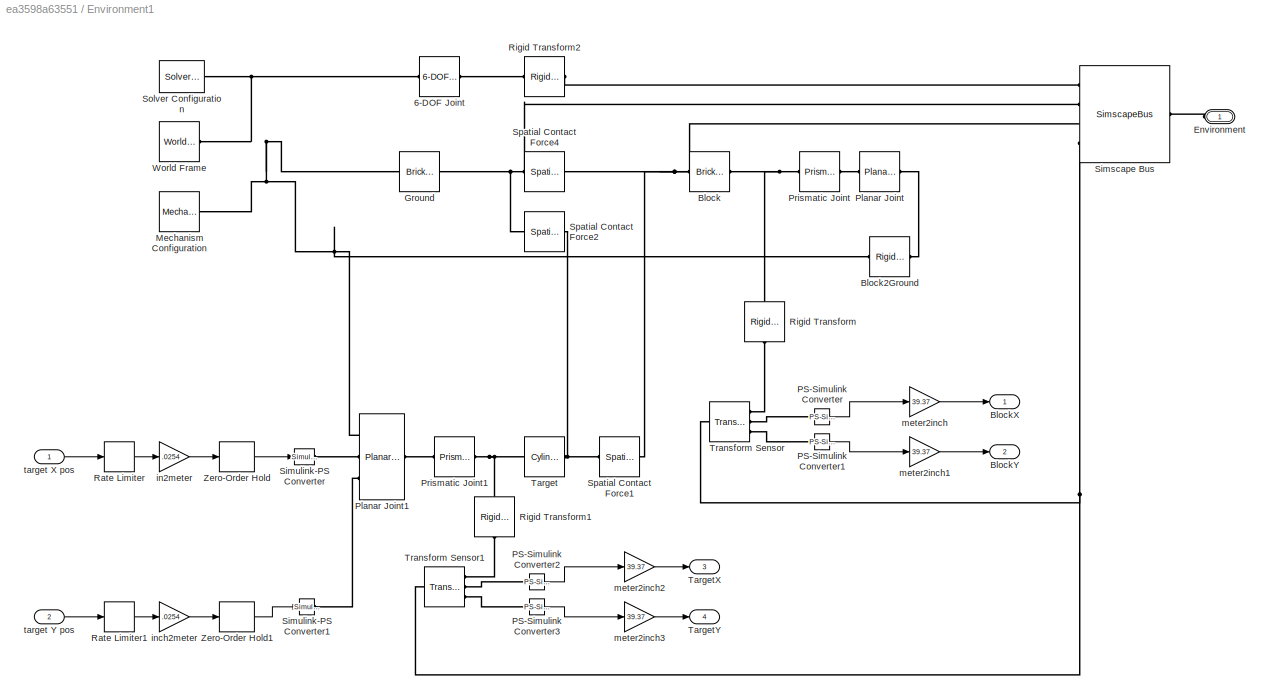
BLOCK [SubSystem] Environment1
  Ports = [2, 4, 0, 0, 0, 1]
  RequestExecContextInheritance = off
BLOCK [Reference] Environment1/6-DOF Joint  REF=sm_lib/Joints/6-DOF Joint
  Ports = [0, 0, 0, 0, 0, 1, 1]
  SourceBlock = sm_lib/Joints/6-DOF Joint
  SourceProductBaseCode = MS
  SourceType = 6-DOF Joint
BLOCK [Reference] Environment1/Block  REF=sm_lib/Body Elements/Brick Solid
  Ports = [0, 0, 0, 0, 0, 1, 1]
  SourceBlock = sm_lib/Body Elements/Brick Solid
  SourceProductBaseCode = MS
  SourceType = Brick Solid
BLOCK [Reference] Environment1/Block2Ground  REF=sm_lib/Frames and
Transforms/Rigid
Transform
  Ports = [0, 0, 0, 0, 0, 1, 1]
  SourceBlock = sm_lib/Frames and\nTransforms/Rigid\nTransform
  SourceProductBaseCode = MS
  SourceType = Rigid\nTransform
BLOCK [Outport] Environment1/BlockX
BLOCK [Outport] Environment1/BlockY
  Port = 2
BLOCK [PMIOPort] Environment1/Environment
  Side = Left
BLOCK [Reference] Environment1/Ground  REF=sm_lib/Body Elements/Brick Solid
  Ports = [0, 0, 0, 0, 0, 1, 1]
  SourceBlock = sm_lib/Body Elements/Brick Solid
  SourceProductBaseCode = MS
  SourceType = Brick Solid
BLOCK [Reference] Environment1/Mechanism Configuration  REF=sm_lib/Utilities/Mechanism
Configuration
  Ports = [0, 0, 0, 0, 0, 0, 1]
  SourceBlock = sm_lib/Utilities/Mechanism\nConfiguration
  SourceProductBaseCode = MS
  SourceType = Mechanism\nConfiguration
BLOCK [Reference] Environment1/PS-Simulink Converter  REF=nesl_utility/PS-Simulink
Converter
  Ports = [0, 1, 0, 0, 0, 1]
  SourceBlock = nesl_utility/PS-Simulink\nConverter
  SourceProductBaseCode = SS
  SourceType = PS-Simulink\nConverter
BLOCK [Reference] Environment1/PS-Simulink Converter1  REF=nesl_utility/PS-Simulink
Converter
  Ports = [0, 1, 0, 0, 0, 1]
  SourceBlock = nesl_utility/PS-Simulink\nConverter
  SourceProductBaseCode = SS
  SourceType = PS-Simulink\nConverter
BLOCK [Reference] Environment1/PS-Simulink Converter2  REF=nesl_utility/PS-Simulink
Converter
  Ports = [0, 1, 0, 0, 0, 1]
  SourceBlock = nesl_utility/PS-Simulink\nConverter
  SourceProductBaseCode = SS
  SourceType = PS-Simulink\nConverter
BLOCK [Reference] Environment1/PS-Simulink Converter3  REF=nesl_utility/PS-Simulink
Converter
  Ports = [0, 1, 0, 0, 0, 1]
  SourceBlock = nesl_utility/PS-Simulink\nConverter
  SourceProductBaseCode = SS
  SourceType = PS-Simulink\nConverter
BLOCK [Reference] Environment1/Planar Joint  REF=sm_lib/Joints/Planar Joint
  Ports = [0, 0, 0, 0, 0, 1, 1]
  SourceBlock = sm_lib/Joints/Planar Joint
  SourceProductBaseCode = MS
  SourceType = Planar Joint
BLOCK [Reference] Environment1/Planar Joint1  REF=sm_lib/Joints/Planar Joint
  Ports = [0, 0, 0, 0, 0, 3, 1]
  SourceBlock = sm_lib/Joints/Planar Joint
  SourceProductBaseCode = MS
  SourceType = Planar Joint
BLOCK [Reference] Environment1/Prismatic Joint  REF=sm_lib/Joints/Prismatic
Joint
  Ports = [0, 0, 0, 0, 0, 1, 1]
  SourceBlock = sm_lib/Joints/Prismatic\nJoint
  SourceProductBaseCode = MS
  SourceType = Prismatic\nJoint
BLOCK [Reference] Environment1/Prismatic Joint1  REF=sm_lib/Joints/Prismatic
Joint
  Ports = [0, 0, 0, 0, 0, 1, 1]
  SourceBlock = sm_lib/Joints/Prismatic\nJoint
  SourceProductBaseCode = MS
  SourceType = Prismatic\nJoint
BLOCK [RateLimiter] Environment1/Rate Limiter
  FallingSlewLimit = -25
  RisingSlewLimit = 25
  SampleTimeMode = inherited
BLOCK [RateLimiter] Environment1/Rate Limiter1
  FallingSlewLimit = -25
  RisingSlewLimit = 25
  SampleTimeMode = inherited
BLOCK [Reference] Environment1/Rigid Transform  REF=sm_lib/Frames and
Transforms/Rigid
Transform
  NameLocation = right
  Ports = [0, 0, 0, 0, 0, 1, 1]
  SourceBlock = sm_lib/Frames and\nTransforms/Rigid\nTransform
  SourceProductBaseCode = MS
  SourceType = Rigid\nTransform
BLOCK [Reference] Environment1/Rigid Transform1  REF=sm_lib/Frames and
Transforms/Rigid
Transform
  NameLocation = right
  Ports = [0, 0, 0, 0, 0, 1, 1]
  SourceBlock = sm_lib/Frames and\nTransforms/Rigid\nTransform
  SourceProductBaseCode = MS
  SourceType = Rigid\nTransform
BLOCK [Reference] Environment1/Rigid Transform2  REF=sm_lib/Frames and
Transforms/Rigid
Transform
  Ports = [0, 0, 0, 0, 0, 1, 1]
  SourceBlock = sm_lib/Frames and\nTransforms/Rigid\nTransform
  SourceProductBaseCode = MS
  SourceType = Rigid\nTransform
BLOCK [SimscapeBus] Environment1/Simscape Bus
  HierarchyStrings = Frame;Wheel2Ground;Claw2Block1;ChassisCOG
  Ports = [0, 0, 0, 0, 0, 4, 1]
BLOCK [Reference] Environment1/Simulink-PS Converter  REF=nesl_utility/Simulink-PS
Converter
  Ports = [1, 0, 0, 0, 0, 0, 1]
  SourceBlock = nesl_utility/Simulink-PS\nConverter
  SourceProductBaseCode = SS
  SourceType = Simulink-PS\nConverter
BLOCK [Reference] Environment1/Simulink-PS Converter1  REF=nesl_utility/Simulink-PS
Converter
  Ports = [1, 0, 0, 0, 0, 0, 1]
  SourceBlock = nesl_utility/Simulink-PS\nConverter
  SourceProductBaseCode = SS
  SourceType = Simulink-PS\nConverter
BLOCK [Reference] Environment1/Solver Configuration  REF=nesl_utility/Solver
Configuration
  Ports = [0, 0, 0, 0, 0, 0, 1]
  SourceBlock = nesl_utility/Solver\nConfiguration
  SourceProductBaseCode = SS
  SourceType = Solver\nConfiguration
BLOCK [Reference] Environment1/Spatial Contact Force1  REF=sm_lib/Forces and
Torques/Spatial
Contact Force
  Ports = [0, 0, 0, 0, 0, 1, 1]
  SourceBlock = sm_lib/Forces and\nTorques/Spatial\nContact Force
  SourceProductBaseCode = MS
  SourceType = Spatial\nContact Force
BLOCK [Reference] Environment1/Spatial Contact Force2  REF=sm_lib/Forces and
Torques/Spatial
Contact Force
  Ports = [0, 0, 0, 0, 0, 1, 1]
  SourceBlock = sm_lib/Forces and\nTorques/Spatial\nContact Force
  SourceProductBaseCode = MS
  SourceType = Spatial\nContact Force
BLOCK [Reference] Environment1/Spatial Contact Force4  REF=sm_lib/Forces and
Torques/Spatial
Contact Force
  Ports = [0, 0, 0, 0, 0, 1, 1]
  SourceBlock = sm_lib/Forces and\nTorques/Spatial\nContact Force
  SourceProductBaseCode = MS
  SourceType = Spatial\nContact Force
BLOCK [Reference] Environment1/Target  REF=sm_lib/Body Elements/Cylindrical Solid
  Ports = [0, 0, 0, 0, 0, 1, 1]
  SourceBlock = sm_lib/Body Elements/Cylindrical Solid
  SourceProductBaseCode = MS
  SourceType = Cylindrical Solid
BLOCK [Outport] Environment1/TargetX
  Port = 3
BLOCK [Outport] Environment1/TargetY
  Port = 4
BLOCK [Reference] Environment1/Transform Sensor  REF=sm_lib/Frames and
Transforms/Transform
Sensor
  Ports = [0, 0, 0, 0, 0, 1, 3]
  SourceBlock = sm_lib/Frames and\nTransforms/Transform\nSensor
  SourceProductBaseCode = MS
  SourceType = Transform\nSensor
BLOCK [Reference] Environment1/Transform Sensor1  REF=sm_lib/Frames and
Transforms/Transform
Sensor
  Ports = [0, 0, 0, 0, 0, 1, 3]
  SourceBlock = sm_lib/Frames and\nTransforms/Transform\nSensor
  SourceProductBaseCode = MS
  SourceType = Transform\nSensor
BLOCK [Reference] Environment1/World Frame  REF=sm_lib/Frames and
Transforms/World Frame
  Ports = [0, 0, 0, 0, 0, 0, 1]
  SourceBlock = sm_lib/Frames and\nTransforms/World Frame
  SourceProductBaseCode = MS
  SourceType = World Frame
BLOCK [ZeroOrderHold] Environment1/Zero-Order Hold
  SampleTime = -1
BLOCK [ZeroOrderHold] Environment1/Zero-Order Hold1
  SampleTime = -1
BLOCK [Gain] Environment1/in2meter
  Gain = .0254
BLOCK [Gain] Environment1/inch2meter
  Gain = .0254
BLOCK [Gain] Environment1/meter2inch
  Gain = 39.37
BLOCK [Gain] Environment1/meter2inch1
  Gain = 39.37
BLOCK [Gain] Environment1/meter2inch2
  Gain = 39.37
BLOCK [Gain] Environment1/meter2inch3
  Gain = 39.37
BLOCK [Inport] Environment1/target X pos
BLOCK [Inport] Environment1/target Y pos
  Port = 2
BLOCK [Mux] Mux
  DisplayOption = bar
  Ports = [4, 1]
BLOCK [SliderBlock] Slider
  LabelPosition = Hide
  ScaleMin = 40
BLOCK [SliderBlock] Slider1
  LabelPosition = Hide
  ScaleMax = 15
  ScaleMin = -15
BLOCK [Constant] Target X pos
  Value = -3.942708333333334
BLOCK [Constant] Target Y pos
  Value = 80.7957
BLOCK [SubSystem] Task Logic
  ErrorFcn = Stateflow.Translate.translate
  NameLocation = top
  PermitHierarchicalResolution = ExplicitOnly
  PortSchema = {"entries":[{"content":{"sides":[{"content":{"connectorIds":["In5","In6","In7"]},"type":"ConnectorPlacement.EquallySpacedRectSide","uuid":"86aadc9a-7840-4a76-9712-6311cc087e25"},{"content":{"connectorIds":["Out1","Out2","Out3","Out4"],"side":"RIGHT"},"type":"ConnectorPlacement.EquallySpacedRectSide","uuid":"d99c417e-0728-4b23-9dca-fefcb39e4d64"},{"content":{"connectorIds":[],"side":"TOP"},"type":"...<+442ch>
  Ports = [7, 4]
  RequestExecContextInheritance = off
  SFBlockType = Chart
  TreatAsAtomicUnit = on
BLOCK [Demux] Task Logic/ Demux 
  Outputs = 1
  Ports = [1, 1]
BLOCK [S-Function] Task Logic/ SFunction 
  EnableBusSupport = on
  FunctionName = sf_sfun
  PortCounts = [7 5]
  Ports = [7, 5]
  SFcnIsStateOwnerBlock = off
  SFunctionDeploymentMode = off
  Tag = Stateflow S-Function 1
BLOCK [Terminator] Task Logic/ Terminator 
BLOCK [Outport] Task Logic/arm_pos
  Port = 4
BLOCK [Inport] Task Logic/block_x
BLOCK [Inport] Task Logic/block_y
  Port = 2
BLOCK [Outport] Task Logic/claw_pos
  Port = 3
BLOCK [Inport] Task Logic/gyro
  Port = 7
BLOCK [Outport] Task Logic/left_speed
  Port = 2
BLOCK [Outport] Task Logic/right_speed
BLOCK [Inport] Task Logic/target_x
  Port = 4
BLOCK [Inport] Task Logic/target_y
  Port = 3
BLOCK [Inport] Task Logic/x
  Port = 5
BLOCK [Inport] Task Logic/y
  Port = 6
BLOCK [Gain] meter2inch
  Gain = 39.37
BLOCK [Gain] meter2inch1
  Gain = 39.37
ANNOTATION (root): VEX Robot Simulation - Perception This Simulink model shows how to program and test robot autonomous behavior in physical simulations using a Stateflow Chart. The robot is programmed to find and obtain an object, and then place it in a target location. The autonomous logic uses the sensed position of the the object and target in order to react to changing environment conditions in real-time. See a...<+42ch>
ANNOTATION (root): Target X Position
ANNOTATION (root): Target Y Position
ANNOTATION (root): <copyright redacted>
ANNOTATION (root): MATLAB Online Controls
ANNOTATION (root): User Controls
LINE ClawBot/Claw + Arm/Degrees to Radians:1 -> ClawBot/Claw + Arm/Zero-Order Hold:1
LINE ClawBot/Claw + Arm/Gain1:1 -> ClawBot/Claw + Arm/Zero-Order Hold1:1
LINE ClawBot/Claw + Arm/Left Pincher/Gain:1 -> ClawBot/Claw + Arm/Left Pincher/Simulink-PS Converter1:1
LINE ClawBot/Claw + Arm/Left Pincher/clawPose:1 -> ClawBot/Claw + Arm/Left Pincher/Gain:1
LINE ClawBot/Claw + Arm/Lower Arm/PS-Simulink Converter:1 -> ClawBot/Claw + Arm/Lower Arm/Scope:1
LINE ClawBot/Claw + Arm/Lower Arm/armPosition:1 -> ClawBot/Claw + Arm/Lower Arm/Simulink-PS Converter2:1
LINE ClawBot/Claw + Arm/Rate Limiter1:1 -> ClawBot/Claw + Arm/Gain1:1
LINE ClawBot/Claw + Arm/Rate Limiter:1 -> ClawBot/Claw + Arm/Degrees to Radians:1
LINE ClawBot/Claw + Arm/Right Pincher/PS-Simulink Converter:1 -> ClawBot/Claw + Arm/Right Pincher/Scope:1
LINE ClawBot/Claw + Arm/Right Pincher/clawPose:1 -> ClawBot/Claw + Arm/Right Pincher/Simulink-PS Converter3:1
NET ClawBot/Claw + Arm/Zero-Order Hold1:1 -> ClawBot/Claw + Arm/Left Pincher:1, ClawBot/Claw + Arm/Right Pincher:1
LINE ClawBot/Claw + Arm/Zero-Order Hold:1 -> ClawBot/Claw + Arm/Lower Arm:1
LINE ClawBot/Claw + Arm/armPosition:1 -> ClawBot/Claw + Arm/Rate Limiter:1
LINE ClawBot/Claw + Arm/clawPosition:1 -> ClawBot/Claw + Arm/Rate Limiter1:1
LINE ClawBot/Front Left Wheel/In1:1 -> ClawBot/Front Left Wheel/Simulink-PS Converter:1
LINE ClawBot/Front Right Wheel/rTorque:1 -> ClawBot/Front Right Wheel/Simulink-PS Converter1:1
LINE ClawBot/Gain1:1 -> ClawBot/Front Right Wheel:1
LINE ClawBot/Gain:1 -> ClawBot/Front Left Wheel:1
LINE ClawBot/LeftWheel:1 -> ClawBot/Gain:1
LINE ClawBot/RightWheel:1 -> ClawBot/Gain1:1
LINE ClawBot/Sensors/PS-Simulink Converter1:1 -> ClawBot/Sensors/tRate:1
LINE ClawBot/Sensors/PS-Simulink Converter2:1 -> ClawBot/Sensors/yPose:1
LINE ClawBot/Sensors/PS-Simulink Converter:1 -> ClawBot/Sensors/xPose:1
LINE ClawBot/Sensors:1 -> ClawBot/thetaRate:1
LINE ClawBot/Sensors:2 -> ClawBot/xPose:1
LINE ClawBot/Sensors:3 -> ClawBot/yPose:1
LINE ClawBot/armPose:1 -> ClawBot/Claw + Arm:1
LINE ClawBot/clawPose:1 -> ClawBot/Claw + Arm:2
LINE ClawBot:1 -> meter2inch1:1
LINE ClawBot:2 -> meter2inch:1
LINE ClawBot:3 -> Task Logic:7
LINE Delay:1 -> Demux:1
LINE Demux:1 -> ClawBot:1
LINE Demux:2 -> ClawBot:2
LINE Demux:3 -> ClawBot:3
LINE Demux:4 -> ClawBot:4
LINE Environment1/PS-Simulink Converter1:1 -> Environment1/meter2inch1:1
LINE Environment1/PS-Simulink Converter2:1 -> Environment1/meter2inch2:1
LINE Environment1/PS-Simulink Converter3:1 -> Environment1/meter2inch3:1
LINE Environment1/PS-Simulink Converter:1 -> Environment1/meter2inch:1
LINE Environment1/Rate Limiter1:1 -> Environment1/inch2meter:1
LINE Environment1/Rate Limiter:1 -> Environment1/in2meter:1
LINE Environment1/Zero-Order Hold1:1 -> Environment1/Simulink-PS Converter1:1
LINE Environment1/Zero-Order Hold:1 -> Environment1/Simulink-PS Converter:1
LINE Environment1/in2meter:1 -> Environment1/Zero-Order Hold:1
LINE Environment1/inch2meter:1 -> Environment1/Zero-Order Hold1:1
LINE Environment1/meter2inch1:1 -> Environment1/BlockY:1
LINE Environment1/meter2inch2:1 -> Environment1/TargetX:1
LINE Environment1/meter2inch3:1 -> Environment1/TargetY:1
LINE Environment1/meter2inch:1 -> Environment1/BlockX:1
LINE Environment1/target X pos:1 -> Environment1/Rate Limiter:1
LINE Environment1/target Y pos:1 -> Environment1/Rate Limiter1:1
LINE Environment1:1 -> Task Logic:1
LINE Environment1:2 -> Task Logic:2
LINE Environment1:3 -> Task Logic:4
LINE Environment1:4 -> Task Logic:3
LINE Mux:1 -> Delay:1
LINE Target X pos:1 -> Environment1:1
LINE Target Y pos:1 -> Environment1:2
LINE Task Logic:1 -> Mux:1
LINE Task Logic:2 -> Mux:2
LINE Task Logic:3 -> Mux:3
LINE Task Logic:4 -> Mux:4
LINE meter2inch1:1 -> Task Logic:5
LINE meter2inch:1 -> Task Logic:6
PLINE ClawBot/Chassis/Conn1:RConn1 -- ClawBot/Chassis/Vehicle Base:LConn1
PLINE ClawBot/Chassis/Conn2:RConn1 -- ClawBot/Chassis/Vehicle Base:LConn2
PLINE ClawBot/Chassis/L1:LConn1 -- ClawBot/Chassis/Rigid Transform:LConn1
PLINE ClawBot/Chassis/Rigid Transform:RConn1 -- ClawBot/Chassis/Vehicle Base:RConn1
PNET net1: ClawBot/Chassis:LConn1 -- ClawBot/Claw + Arm:RConn1 -- ClawBot/Front Left Wheel:RConn1 -- ClawBot/Front Right Wheel:RConn1 -- ClawBot/Rear Left Wheel:RConn1 -- ClawBot/Rear Right Wheel:LConn1 -- ClawBot/Simscape Bus:LConn1
PNET net2: ClawBot/Chassis:RConn1 -- ClawBot/Sensors:LConn1 -- ClawBot/Simscape Bus1:LConn1
PLINE ClawBot/Claw + Arm/Claw Base/Claw Mount:LConn1 -- ClawBot/Claw + Arm/Claw Base/Conn1:RConn1
PNET net3: ClawBot/Claw + Arm/Claw Base:LConn1 -- ClawBot/Claw + Arm/Left Pincher:RConn1 -- ClawBot/Claw + Arm/Lower Arm:RConn2 -- ClawBot/Claw + Arm/Right Pincher:LConn1 -- ClawBot/Claw + Arm/Upper Arm:RConn2
PNET net4: ClawBot/Claw + Arm/Claw2Block1 Contact Force:RConn1 -- ClawBot/Claw + Arm/Left Pincher:RConn2 -- ClawBot/Claw + Arm/Right Pincher:LConn2
PNET net5: ClawBot/Claw + Arm/Frame:RConn1 -- ClawBot/Claw + Arm/Lower Arm:RConn1 -- ClawBot/Claw + Arm/Upper Arm:RConn1
PNET net6: ClawBot/Claw + Arm/Left Pincher/Block1 Contact Force:RConn1 -- ClawBot/Claw + Arm/Left Pincher/Spatial Contact Force1:RConn1 -- ClawBot/Claw + Arm/Left Pincher/Spatial Contact Force2:RConn1 -- ClawBot/Claw + Arm/Left Pincher/Spatial Contact Force3:RConn1
PNET net7: ClawBot/Claw + Arm/Left Pincher/Frame2arm:RConn1 -- ClawBot/Claw + Arm/Left Pincher/Rigid Transform21:LConn1 -- ClawBot/Claw + Arm/Left Pincher/Rigid Transform23:LConn1
PLINE ClawBot/Claw + Arm/Left Pincher/L1:LConn1 -- ClawBot/Claw + Arm/Left Pincher/Rigid Transform25:RConn1
PLINE ClawBot/Claw + Arm/Left Pincher/L1:RConn1 -- ClawBot/Claw + Arm/Left Pincher/Spatial Contact Force1:LConn1
PLINE ClawBot/Claw + Arm/Left Pincher/L2:LConn1 -- ClawBot/Claw + Arm/Left Pincher/Rigid Transform28:RConn1
PLINE ClawBot/Claw + Arm/Left Pincher/L2:RConn1 -- ClawBot/Claw + Arm/Left Pincher/Spatial Contact Force2:LConn1
PLINE ClawBot/Claw + Arm/Left Pincher/L3:LConn1 -- ClawBot/Claw + Arm/Left Pincher/Rigid Transform2:RConn1
PLINE ClawBot/Claw + Arm/Left Pincher/L3:RConn1 -- ClawBot/Claw + Arm/Left Pincher/Spatial Contact Force3:LConn1
PNET net8: ClawBot/Claw + Arm/Left Pincher/Rigid Transform18:LConn1 -- ClawBot/Claw + Arm/Left Pincher/Rigid Transform19:LConn1 -- ClawBot/Claw + Arm/Left Pincher/left gear:LConn1
PLINE ClawBot/Claw + Arm/Left Pincher/Rigid Transform18:RConn1 -- ClawBot/Claw + Arm/Left Pincher/left_gear2mount:RConn1
PLINE ClawBot/Claw + Arm/Left Pincher/Rigid Transform19:RConn1 -- ClawBot/Claw + Arm/Left Pincher/left pinch2gear:LConn1
PNET net9: ClawBot/Claw + Arm/Left Pincher/Rigid Transform1:LConn1 -- ClawBot/Claw + Arm/Left Pincher/Rigid Transform20:LConn1 -- ClawBot/Claw + Arm/Left Pincher/Rigid Transform25:LConn1 -- ClawBot/Claw + Arm/Left Pincher/Rigid Transform27:LConn1 -- ClawBot/Claw + Arm/Left Pincher/Rigid Transform3:LConn1 -- ClawBot/Claw + Arm/Left Pincher/left pincher:LConn1
PLINE ClawBot/Claw + Arm/Left Pincher/Rigid Transform1:RConn1 -- ClawBot/Claw + Arm/Left Pincher/Rigid Transform2:LConn1
PLINE ClawBot/Claw + Arm/Left Pincher/Rigid Transform20:RConn1 -- ClawBot/Claw + Arm/Left Pincher/left pinch2gear:RConn1
PLINE ClawBot/Claw + Arm/Left Pincher/Rigid Transform21:RConn1 -- ClawBot/Claw + Arm/Left Pincher/left_pivot2mount:LConn1
PNET net10: ClawBot/Claw + Arm/Left Pincher/Rigid Transform22:LConn1 -- ClawBot/Claw + Arm/Left Pincher/Rigid Transform5:LConn1 -- ClawBot/Claw + Arm/Left Pincher/left pivot:LConn1
PLINE ClawBot/Claw + Arm/Left Pincher/Rigid Transform22:RConn1 -- ClawBot/Claw + Arm/Left Pincher/left_pivot2mount:RConn1
PLINE ClawBot/Claw + Arm/Left Pincher/Rigid Transform23:RConn1 -- ClawBot/Claw + Arm/Left Pincher/left_gear2mount:LConn1
PLINE ClawBot/Claw + Arm/Left Pincher/Rigid Transform27:RConn1 -- ClawBot/Claw + Arm/Left Pincher/Rigid Transform28:LConn1
PLINE ClawBot/Claw + Arm/Left Pincher/Rigid Transform3:RConn1 -- ClawBot/Claw + Arm/Left Pincher/left_pinch2pivot:RConn1
PLINE ClawBot/Claw + Arm/Left Pincher/Rigid Transform5:RConn1 -- ClawBot/Claw + Arm/Left Pincher/left_pinch2pivot:LConn1
PLINE ClawBot/Claw + Arm/Left Pincher/Simulink-PS Converter1:RConn1 -- ClawBot/Claw + Arm/Left Pincher/left_gear2mount:LConn2
PLINE ClawBot/Claw + Arm/Lower Arm/Conn1:RConn1 -- ClawBot/Claw + Arm/Lower Arm/Rigid Transform10:LConn1
PLINE ClawBot/Claw + Arm/Lower Arm/Conn2:RConn1 -- ClawBot/Claw + Arm/Lower Arm/Rigid Transform13:LConn1
PNET net11: ClawBot/Claw + Arm/Lower Arm/Lower Arm:LConn1 -- ClawBot/Claw + Arm/Lower Arm/Rigid Transform16:LConn1 -- ClawBot/Claw + Arm/Lower Arm/Rigid Transform9:LConn1
PLINE ClawBot/Claw + Arm/Lower Arm/LowerArm2base:LConn1 -- ClawBot/Claw + Arm/Lower Arm/Rigid Transform10:RConn1
PLINE ClawBot/Claw + Arm/Lower Arm/LowerArm2base:LConn2 -- ClawBot/Claw + Arm/Lower Arm/Simulink-PS Converter2:RConn1
PLINE ClawBot/Claw + Arm/Lower Arm/LowerArm2base:RConn1 -- ClawBot/Claw + Arm/Lower Arm/Rigid Transform9:RConn1
PLINE ClawBot/Claw + Arm/Lower Arm/LowerArm2base:RConn2 -- ClawBot/Claw + Arm/Lower Arm/PS-Simulink Converter:LConn1
PLINE ClawBot/Claw + Arm/Lower Arm/LowerArm2mount:LConn1 -- ClawBot/Claw + Arm/Lower Arm/Rigid Transform16:RConn1
PLINE ClawBot/Claw + Arm/Lower Arm/LowerArm2mount:RConn1 -- ClawBot/Claw + Arm/Lower Arm/Rigid Transform13:RConn1
PNET net12: ClawBot/Claw + Arm/Right Pincher/Block1 Contact Force:RConn1 -- ClawBot/Claw + Arm/Right Pincher/Spatial Contact Force1:RConn1 -- ClawBot/Claw + Arm/Right Pincher/Spatial Contact Force2:RConn1 -- ClawBot/Claw + Arm/Right Pincher/Spatial Contact Force3:RConn1
PNET net13: ClawBot/Claw + Arm/Right Pincher/Claw Base:RConn1 -- ClawBot/Claw + Arm/Right Pincher/Rigid Transform6:LConn1 -- ClawBot/Claw + Arm/Right Pincher/Rigid Transform7:LConn1
PLINE ClawBot/Claw + Arm/Right Pincher/PS-Simulink Converter:LConn1 -- ClawBot/Claw + Arm/Right Pincher/right_gear2mount:RConn2
PLINE ClawBot/Claw + Arm/Right Pincher/R1:LConn1 -- ClawBot/Claw + Arm/Right Pincher/Rigid Transform24:RConn1
PLINE ClawBot/Claw + Arm/Right Pincher/R1:RConn1 -- ClawBot/Claw + Arm/Right Pincher/Spatial Contact Force1:LConn1
PLINE ClawBot/Claw + Arm/Right Pincher/R2:LConn1 -- ClawBot/Claw + Arm/Right Pincher/Rigid Transform30:RConn1
PLINE ClawBot/Claw + Arm/Right Pincher/R2:RConn1 -- ClawBot/Claw + Arm/Right Pincher/Spatial Contact Force2:LConn1
PLINE ClawBot/Claw + Arm/Right Pincher/R3:LConn1 -- ClawBot/Claw + Arm/Right Pincher/Rigid Transform5:RConn1
PLINE ClawBot/Claw + Arm/Right Pincher/R3:RConn1 -- ClawBot/Claw + Arm/Right Pincher/Spatial Contact Force3:LConn1
PNET net14: ClawBot/Claw + Arm/Right Pincher/Rigid Transform11:LConn1 -- ClawBot/Claw + Arm/Right Pincher/Rigid Transform14:LConn1 -- ClawBot/Claw + Arm/Right Pincher/right gear:LConn1
PLINE ClawBot/Claw + Arm/Right Pincher/Rigid Transform11:RConn1 -- ClawBot/Claw + Arm/Right Pincher/right_gear2mount:RConn1
PLINE ClawBot/Claw + Arm/Right Pincher/Rigid Transform14:RConn1 -- ClawBot/Claw + Arm/Right Pincher/right pinch2gear:LConn1
PNET net15: ClawBot/Claw + Arm/Right Pincher/Rigid Transform17:LConn1 -- ClawBot/Claw + Arm/Right Pincher/Rigid Transform24:LConn1 -- ClawBot/Claw + Arm/Right Pincher/Rigid Transform29:LConn1 -- ClawBot/Claw + Arm/Right Pincher/Rigid Transform3:LConn1 -- ClawBot/Claw + Arm/Right Pincher/Rigid Transform:LConn1 -- ClawBot/Claw + Arm/Right Pincher/right pincher:LConn1
PLINE ClawBot/Claw + Arm/Right Pincher/Rigid Transform17:RConn1 -- ClawBot/Claw + Arm/Right Pincher/right pinch2gear:RConn1
PNET net16: ClawBot/Claw + Arm/Right Pincher/Rigid Transform1:LConn1 -- ClawBot/Claw + Arm/Right Pincher/Rigid Transform4:LConn1 -- ClawBot/Claw + Arm/Right Pincher/right pivot:LConn1
PLINE ClawBot/Claw + Arm/Right Pincher/Rigid Transform1:RConn1 -- ClawBot/Claw + Arm/Right Pincher/right_pinch2pivot:LConn1
PLINE ClawBot/Claw + Arm/Right Pincher/Rigid Transform29:RConn1 -- ClawBot/Claw + Arm/Right Pincher/Rigid Transform30:LConn1
PLINE ClawBot/Claw + Arm/Right Pincher/Rigid Transform3:RConn1 -- ClawBot/Claw + Arm/Right Pincher/Rigid Transform5:LConn1
PLINE ClawBot/Claw + Arm/Right Pincher/Rigid Transform4:RConn1 -- ClawBot/Claw + Arm/Right Pincher/right_pivot2mount:RConn1
PLINE ClawBot/Claw + Arm/Right Pincher/Rigid Transform6:RConn1 -- ClawBot/Claw + Arm/Right Pincher/right_gear2mount:LConn1
PLINE ClawBot/Claw + Arm/Right Pincher/Rigid Transform7:RConn1 -- ClawBot/Claw + Arm/Right Pincher/right_pivot2mount:LConn1
PLINE ClawBot/Claw + Arm/Right Pincher/Rigid Transform:RConn1 -- ClawBot/Claw + Arm/Right Pincher/right_pinch2pivot:RConn1
PLINE ClawBot/Claw + Arm/Right Pincher/Simulink-PS Converter3:RConn1 -- ClawBot/Claw + Arm/Right Pincher/right_gear2mount:LConn2
PLINE ClawBot/Claw + Arm/Upper Arm/Base:RConn1 -- ClawBot/Claw + Arm/Upper Arm/Transform from Joint to Base:LConn1
PLINE ClawBot/Claw + Arm/Upper Arm/Conn2:RConn1 -- ClawBot/Claw + Arm/Upper Arm/Rigid Transform12:LConn1
PLINE ClawBot/Claw + Arm/Upper Arm/Rigid Transform12:RConn1 -- ClawBot/Claw + Arm/Upper Arm/UpperArm2mount:RConn1
PNET net17: ClawBot/Claw + Arm/Upper Arm/Rigid Transform15:LConn1 -- ClawBot/Claw + Arm/Upper Arm/Transform from Joint to Arm:LConn1 -- ClawBot/Claw + Arm/Upper Arm/Upper Arm:LConn1
PLINE ClawBot/Claw + Arm/Upper Arm/Rigid Transform15:RConn1 -- ClawBot/Claw + Arm/Upper Arm/UpperArm2mount:LConn1
PLINE ClawBot/Claw + Arm/Upper Arm/Transform from Joint to Arm:RConn1 -- ClawBot/Claw + Arm/Upper Arm/UpperArm2base:RConn1
PLINE ClawBot/Claw + Arm/Upper Arm/Transform from Joint to Base:RConn1 -- ClawBot/Claw + Arm/Upper Arm/UpperArm2base:LConn1
PLINE ClawBot/Claw + Arm:LConn1 -- ClawBot/Simscape Bus2:LConn1
PNET net18: ClawBot/Environment:RConn1 -- ClawBot/Simscape Bus1:RConn1 -- ClawBot/Simscape Bus2:RConn1 -- ClawBot/Simscape Bus:RConn1
PLINE ClawBot/Front Left Wheel/Frame:RConn1 -- ClawBot/Front Left Wheel/Rigid Transform:LConn1
PLINE ClawBot/Front Left Wheel/Friction:RConn1 -- ClawBot/Front Left Wheel/Spatial Contact Force2:LConn1
PNET net19: ClawBot/Front Left Wheel/Front Left Wheel:LConn1 -- ClawBot/Front Left Wheel/LeftFrontWheel_joint:RConn1 -- ClawBot/Front Left Wheel/Spherical Solid1:RConn1
PLINE ClawBot/Front Left Wheel/LeftFrontWheel_joint:LConn1 -- ClawBot/Front Left Wheel/Rigid Transform:RConn1
PLINE ClawBot/Front Left Wheel/LeftFrontWheel_joint:LConn2 -- ClawBot/Front Left Wheel/Simulink-PS Converter:RConn1
PLINE ClawBot/Front Left Wheel/Spatial Contact Force2:RConn1 -- ClawBot/Front Left Wheel/Spherical Solid1:LConn1
PNET net20: ClawBot/Front Left Wheel:RConn2 -- ClawBot/Front Right Wheel:RConn2 -- ClawBot/Rear Left Wheel:RConn2 -- ClawBot/Rear Right Wheel:LConn2 -- ClawBot/Simscape Bus1:LConn2
PLINE ClawBot/Front Right Wheel/Frame:RConn1 -- ClawBot/Front Right Wheel/Rigid Transform1:LConn1
PLINE ClawBot/Front Right Wheel/Friction:RConn1 -- ClawBot/Front Right Wheel/Spatial Contact Force2:LConn1
PNET net21: ClawBot/Front Right Wheel/Front Right Wheel:LConn1 -- ClawBot/Front Right Wheel/RightFrontWheel_joint:RConn1 -- ClawBot/Front Right Wheel/Spherical Solid:RConn1
PLINE ClawBot/Front Right Wheel/RightFrontWheel_joint:LConn1 -- ClawBot/Front Right Wheel/Rigid Transform1:RConn1
PLINE ClawBot/Front Right Wheel/RightFrontWheel_joint:LConn2 -- ClawBot/Front Right Wheel/Simulink-PS Converter1:RConn1
PLINE ClawBot/Front Right Wheel/Spatial Contact Force2:RConn1 -- ClawBot/Front Right Wheel/Spherical Solid:LConn1
PLINE ClawBot/Rear Left Wheel/Frame:RConn1 -- ClawBot/Rear Left Wheel/Rigid Transform4:LConn1
PLINE ClawBot/Rear Left Wheel/Friction:RConn1 -- ClawBot/Rear Left Wheel/Spatial Contact Force2:RConn1
PLINE ClawBot/Rear Left Wheel/LeftRearWheel_joint:LConn1 -- ClawBot/Rear Left Wheel/Rigid Transform4:RConn1
PNET net22: ClawBot/Rear Left Wheel/LeftRearWheel_joint:RConn1 -- ClawBot/Rear Left Wheel/Rear Left Wheel:LConn1 -- ClawBot/Rear Left Wheel/Spherical Solid3:RConn1
PLINE ClawBot/Rear Left Wheel/Spatial Contact Force2:LConn1 -- ClawBot/Rear Left Wheel/Spherical Solid3:LConn1
PLINE ClawBot/Rear Right Wheel/Contact Force:LConn1 -- ClawBot/Rear Right Wheel/Sphere:LConn1
PLINE ClawBot/Rear Right Wheel/Contact Force:RConn1 -- ClawBot/Rear Right Wheel/Ground:RConn1
PLINE ClawBot/Rear Right Wheel/Frame:RConn1 -- ClawBot/Rear Right Wheel/Rigid Transform5:LConn1
PNET net23: ClawBot/Rear Right Wheel/Rear Right Wheel:LConn1 -- ClawBot/Rear Right Wheel/RightRearWheel_joint:RConn1 -- ClawBot/Rear Right Wheel/Sphere:RConn1
PLINE ClawBot/Rear Right Wheel/RightRearWheel_joint:LConn1 -- ClawBot/Rear Right Wheel/Rigid Transform5:RConn1
PLINE ClawBot/Sensors/PS-Simulink Converter1:LConn1 -- ClawBot/Sensors/Transform Sensor:RConn2
PLINE ClawBot/Sensors/PS-Simulink Converter2:LConn1 -- ClawBot/Sensors/Transform Sensor:RConn4
PLINE ClawBot/Sensors/PS-Simulink Converter:LConn1 -- ClawBot/Sensors/Transform Sensor:RConn3
PLINE ClawBot/Sensors/Rigid Transform:LConn1 -- ClawBot/Sensors/ref:RConn1
PLINE ClawBot/Sensors/Rigid Transform:RConn1 -- ClawBot/Sensors/Transform Sensor:RConn1
PLINE ClawBot/Sensors/Transform Sensor:LConn1 -- ClawBot/Sensors/World Frame:RConn1
PLINE ClawBot:LConn1 -- Environment1:LConn1
PNET net24: Environment1/6-DOF Joint:LConn1 -- Environment1/Block2Ground:LConn1 -- Environment1/Ground:LConn1 -- Environment1/Mechanism Configuration:RConn1 -- Environment1/Planar Joint1:LConn1 -- Environment1/Solver Configuration:RConn1 -- Environment1/World Frame:RConn1
PLINE Environment1/6-DOF Joint:RConn1 -- Environment1/Rigid Transform2:LConn1
PLINE Environment1/Block2Ground:RConn1 -- Environment1/Planar Joint:LConn1
PNET net25: Environment1/Block:LConn1 -- Environment1/Simscape Bus:LConn3 -- Environment1/Spatial Contact Force1:RConn1 -- Environment1/Spatial Contact Force4:RConn1
PNET net26: Environment1/Block:RConn1 -- Environment1/Prismatic Joint:RConn1 -- Environment1/Rigid Transform:RConn1
PLINE Environment1/Environment:RConn1 -- Environment1/Simscape Bus:RConn1
PNET net27: Environment1/Ground:RConn1 -- Environment1/Simscape Bus:LConn2 -- Environment1/Spatial Contact Force2:LConn1 -- Environment1/Spatial Contact Force4:LConn1
PLINE Environment1/PS-Simulink Converter1:LConn1 -- Environment1/Transform Sensor:RConn3
PLINE Environment1/PS-Simulink Converter2:LConn1 -- Environment1/Transform Sensor1:RConn2
PLINE Environment1/PS-Simulink Converter3:LConn1 -- Environment1/Transform Sensor1:RConn3
PLINE Environment1/PS-Simulink Converter:LConn1 -- Environment1/Transform Sensor:RConn2
PLINE Environment1/Planar Joint1:LConn2 -- Environment1/Simulink-PS Converter:RConn1
PLINE Environment1/Planar Joint1:LConn3 -- Environment1/Simulink-PS Converter1:RConn1
PLINE Environment1/Planar Joint1:RConn1 -- Environment1/Prismatic Joint1:LConn1
PLINE Environment1/Planar Joint:RConn1 -- Environment1/Prismatic Joint:LConn1
PNET net28: Environment1/Prismatic Joint1:RConn1 -- Environment1/Rigid Transform1:RConn1 -- Environment1/Target:RConn1
PLINE Environment1/Rigid Transform1:LConn1 -- Environment1/Transform Sensor1:RConn1
PLINE Environment1/Rigid Transform2:RConn1 -- Environment1/Simscape Bus:LConn1
PLINE Environment1/Rigid Transform:LConn1 -- Environment1/Transform Sensor:RConn1
PNET net29: Environment1/Simscape Bus:LConn4 -- Environment1/Transform Sensor1:LConn1 -- Environment1/Transform Sensor:LConn1
PNET net30: Environment1/Spatial Contact Force1:LConn1 -- Environment1/Spatial Contact Force2:RConn1 -- Environment1/Target:LConn1
note: NET lines group one-source signal fan-out (src -> all destinations, sorted); 1:1 wires keep LINE; PNET lines group multi-terminal physical nets as a canonical sorted terminal list (undirected conserving connections); 2-terminal nets keep the pairwise PLINE form
CHART Task Logic states=10 transitions=14
  STATE_LABEL 'TurnLeft\n\nentry:\nright_speed = 150;\nleft_speed = -100;\ngyro_init = gyro;\nduring:\ndelta = delta+abs(gyro-gyro_init);\ngyro_init = gyro;\n'
  STATE_LABEL 'SetTarget\nentry:\nright_speed = 0;\nleft_speed = 0;\nif j == 1\n    dist_x = block_x;\n    dist_y = block_y;\nelse\n    dist_x = target_x;\n    dist_y = target_y;\nend\nsum = (dist_x.^2 +dist_y.^2).^(.5);\nangle_target = tan(-dist_x/dist_y);\ndelta_target = angle_target-angle;\n'
  STATE_LABEL '<!DOCTYPE HTML PUBLIC "-//W3C//DTD HTML 4.0//EN" "http://www.w3.org/TR/REC-html40/strict.dtd">\n<html><head><meta name="qrichtext" content="1" /><style type="text/css">\np, li { white-space: pre-wrap; }\n</style></head><body align="left" style=" font-family:\'Helvetica\'; font-size:12px; font-weight:400; font-style:normal;">\n<p align="left" style=" margin-top:0px; margin-bottom:0px; margin-left:0px; ma...<+132ch>'
  STATE_LABEL 'TurnRight\n\nentry:\nright_speed = -100;\nleft_speed = 150;\ngyro_init = gyro;\nduring:\ndelta = delta-abs(gyro-gyro_init);\ngyro_init = gyro;'
  STATE_LABEL 'ClawOpen_ArmUp\nentry:\nright_speed = 0;\nleft_speed = 0;\nduring:\ni = i+1;\nif i == 10\n    claw_pos = -70;\nend\n'
  STATE_LABEL 'Forward\nduring:\nright_speed = 220;\nleft_speed = 220;\nif j == 1\n    dist_x = block_x;\n    dist_y = block_y;\nelse\n    dist_x = target_x;\n    dist_y = target_y;\nend\nsum = (dist_x.^2 +dist_y.^2).^(.5);\nangle_target = tan(-dist_x/dist_y);\ndelta_target = angle_target-angle;'
  STATE_LABEL 'PickUp\n\nentry:\nright_speed = 0;\nleft_speed = 0;\ni=i+1;\nduring:\ni = i+1;\nif i >200\n    claw_pos = -15;\nend\n'
  STATE_LABEL 'DropOff\nentry:\nright_speed = 0;\nleft_speed = 0;\nclaw_pos = -70;\nduring:\ni= i+1;\nif i>100\n    right_speed = -200;\n    left_speed = -200;\nend\n'
  STATE_LABEL '<!DOCTYPE HTML PUBLIC "-//W3C//DTD HTML 4.0//EN" "http://www.w3.org/TR/REC-html40/strict.dtd">\n<html><head><meta name="qrichtext" content="1" /><style type="text/css">\np, li { white-space: pre-wrap; }\n</style></head><body align="left" style=" font-family:\'Helvetica\'; font-size:12px; font-weight:400; font-style:normal;">\n<p align="left" style=" margin-top:0px; margin-bottom:0px; margin-left:0px; ma...<+133ch>'
  STATE_LABEL 'Done\nentry:\nright_speed = 0;\nleft_speed = 0;'
CHART  states=0 transitions=0
